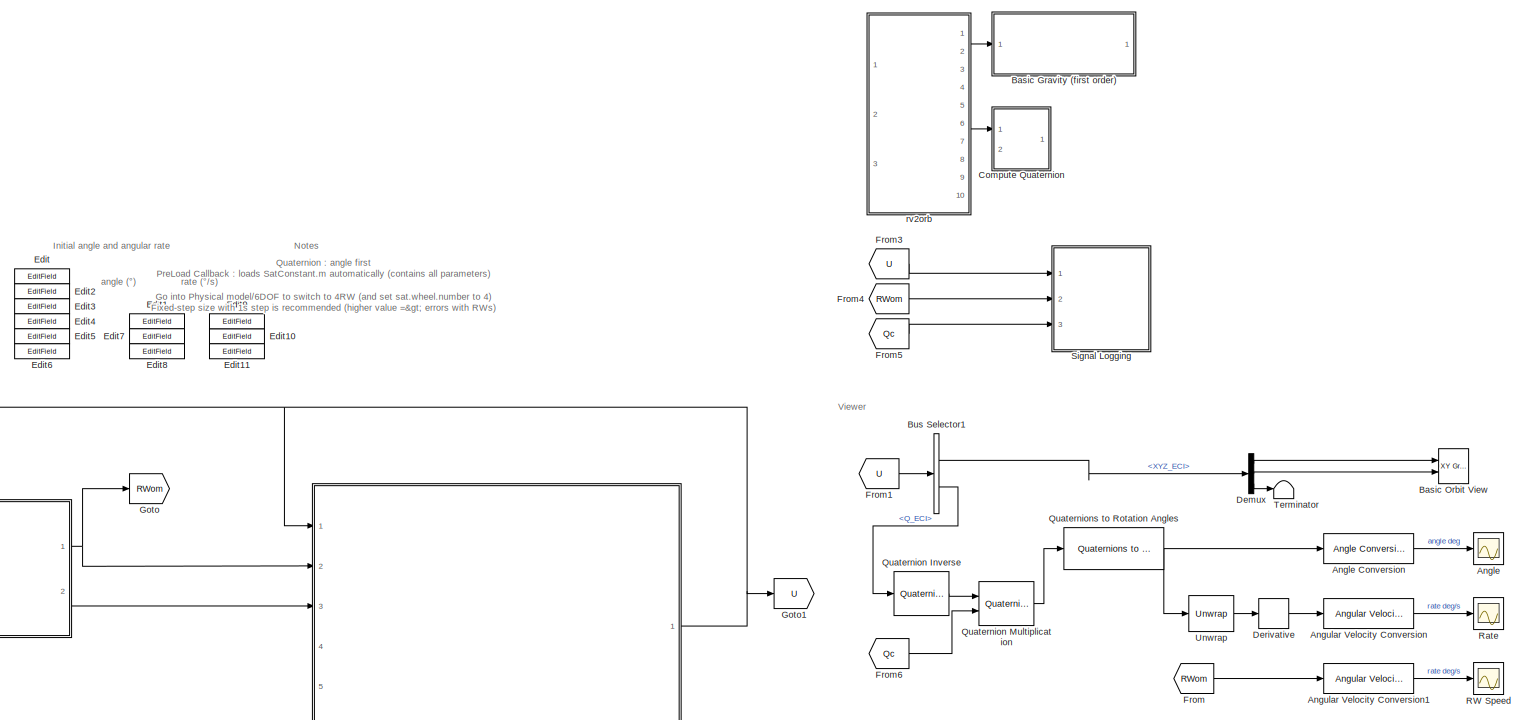
[diagram: root canvas - part 1/3, middle right region]
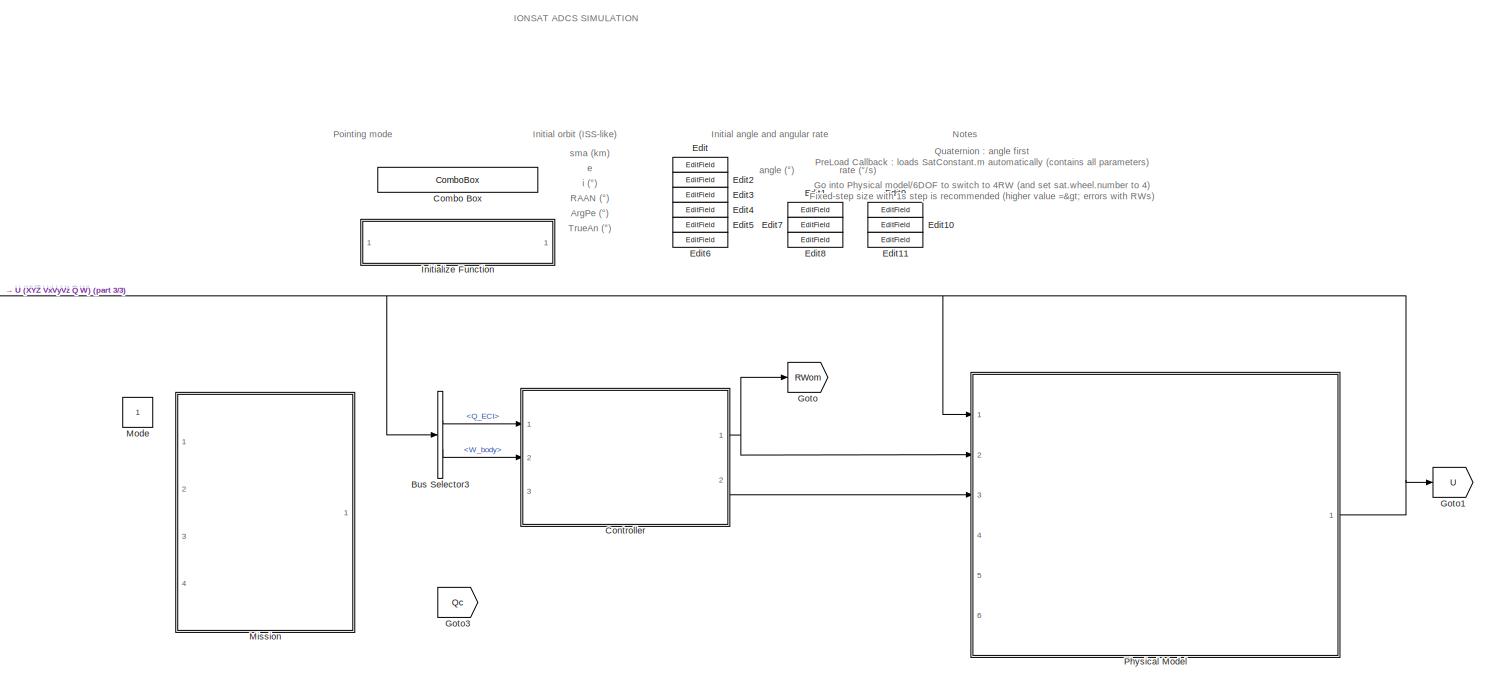
[diagram: root canvas - part 2/3, central region]
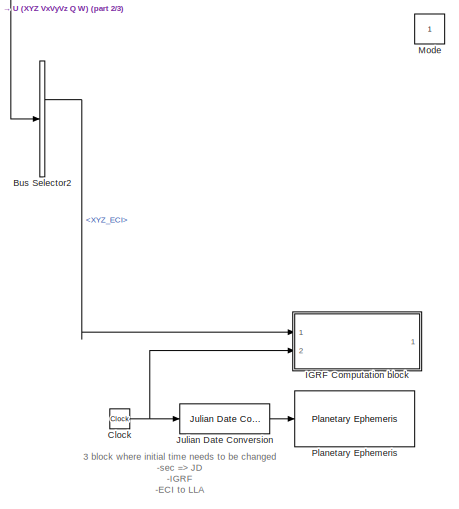
[diagram: root canvas - part 3/3, bottom left region]
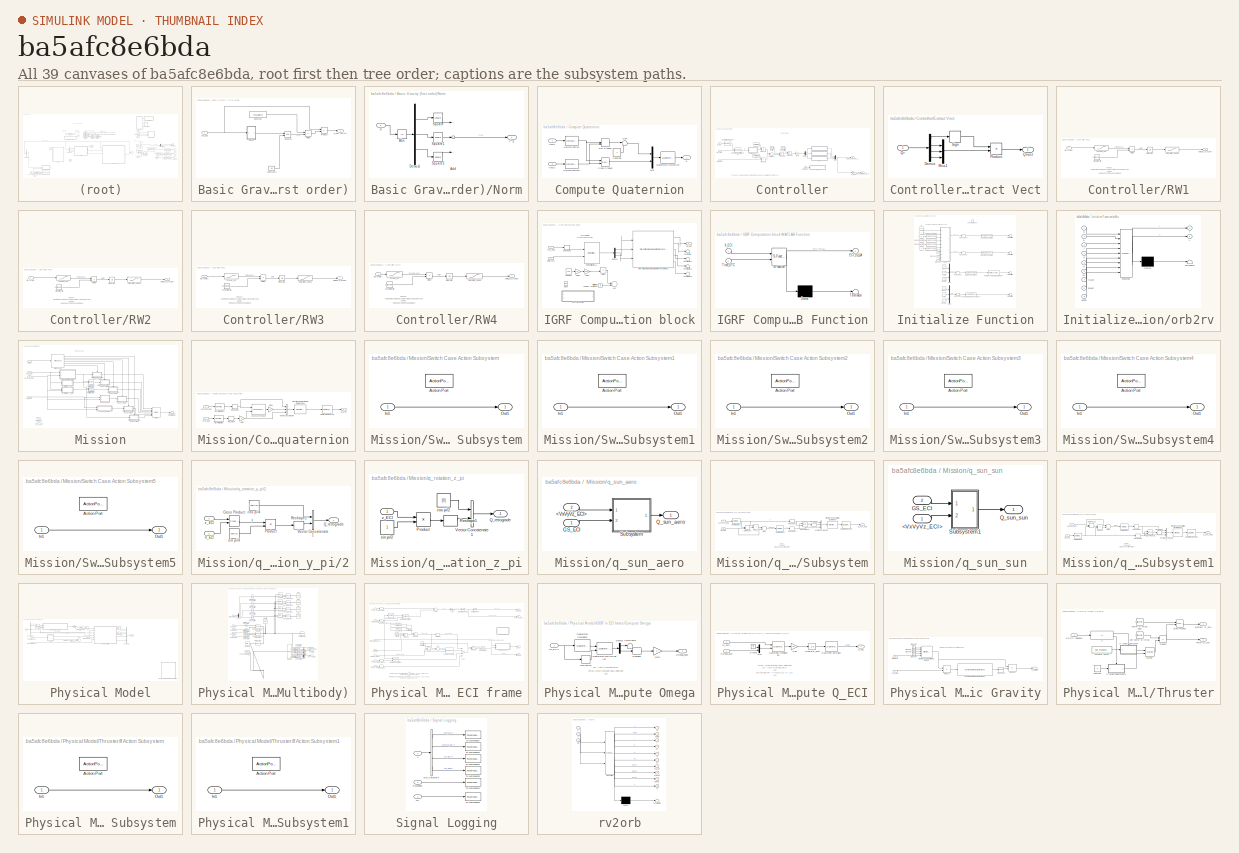
[diagram: thumbnail index - all 39 canvases of the model, root first then tree order]
MODEL slx_ba5afc8e6bda
KIND model
CONFIG AbsTol = auto
CONFIG EnableMultiTasking = off
CONFIG FixedStep = 1
CONFIG MaxStep = auto
CONFIG MinStep = auto
CONFIG PreLoadFcn = load('<path>')
CONFIG RelTol = 1e-3
CONFIG SampleTimeConstraint = Unconstrained
CONFIG Solver = ode8
CONFIG SolverName = ode8
CONFIG StartTime = 0.0
CONFIG StopTime = 8000
WORKSPACE source: MAT-file member
WORKSPACE MCOS: class17 (value not decoded)
BLOCK [Scope] Angle
  Floating = off
  NumInputPorts = 1
  Ports = [1]
  ScopeSpecificationString = Simulink.scopes.TimeScopeBlockCfg('CurrentConfiguration', extmgr.ConfigurationSet(extmgr.Configuration('Core','General UI',true),extmgr.Configuration('Core','Source UI',true),extmgr.Configuration('Sources','WiredSimulink',true,'DataLoggingVariableName','ScopeData1'),extmgr.Configuration('Visuals','Time Domain',true,'SerializedDisplays',{struct('MinYLimReal','-222.05936','MaxYLimReal','222.8327','Y...<+1823ch>
BLOCK [Reference] Angle Conversion  REF=aerolibconvert2/Angle Conversion
  Ports = [1, 1]
  SourceBlock = aerolibconvert2/Angle Conversion
  SourceProductBaseCode = AE
  SourceProductName = Aerospace Blockset
  SourceType = Angle Conversion
BLOCK [Reference] Angular Velocity Conversion  REF=aerolibconvert2/Angular Velocity
Conversion
  Ports = [1, 1]
  SourceBlock = aerolibconvert2/Angular Velocity\nConversion
  SourceProductBaseCode = AE
  SourceProductName = Aerospace Blockset
  SourceType = Angular Velocity Conversion
BLOCK [Reference] Angular Velocity Conversion1  REF=aerolibconvert2/Angular Velocity
Conversion
  Ports = [1, 1]
  SourceBlock = aerolibconvert2/Angular Velocity\nConversion
  SourceProductBaseCode = AE
  SourceProductName = Aerospace Blockset
  SourceType = Angular Velocity Conversion
BLOCK [SubSystem] Basic Gravity (first order)
  Commented = on
  Ports = [1, 1]
  RequestExecContextInheritance = off
BLOCK [Constant] Basic Gravity (first order)/Constant
  Value = -mu_Earth
BLOCK [Constant] Basic Gravity (first order)/Constant3
  Value = 3/2
BLOCK [Product] Basic Gravity (first order)/Divide
  InputSameDT = off
  Inputs = */
  OutDataTypeStr = Inherit: Inherit via internal rule
  Ports = [2, 1]
  RndMeth = Floor
  SaturateOnIntegerOverflow = off
BLOCK [SubSystem] Basic Gravity (first order)/Norm
  Ports = [1, 1]
  RequestExecContextInheritance = off
BLOCK [Abs] Basic Gravity (first order)/Norm/Abs
  SaturateOnIntegerOverflow = off
BLOCK [Sum] Basic Gravity (first order)/Norm/Add
  InputSameDT = off
  Inputs = +++
  OutDataTypeStr = Inherit: Inherit via internal rule
  Ports = [3, 1]
  SaturateOnIntegerOverflow = off
BLOCK [Demux] Basic Gravity (first order)/Norm/Demux1
  DisplayOption = bar
  Outputs = 3
  Ports = [1, 3]
BLOCK [Math] Basic Gravity (first order)/Norm/Square
  Operator = square
  Ports = [1, 1]
BLOCK [Math] Basic Gravity (first order)/Norm/Square1
  Operator = square
  Ports = [1, 1]
BLOCK [Math] Basic Gravity (first order)/Norm/Square2
  Operator = square
  Ports = [1, 1]
BLOCK [Outport] Basic Gravity (first order)/Norm/r**2
  IconDisplay = Port number
BLOCK [Inport] Basic Gravity (first order)/Norm/u
  IconDisplay = Port number
BLOCK [Product] Basic Gravity (first order)/Product
  InputSameDT = off
  OutDataTypeStr = Inherit: Inherit via internal rule
  Ports = [2, 1]
  RndMeth = Floor
  SaturateOnIntegerOverflow = off
BLOCK [Math] Basic Gravity (first order)/Square3
  Operator = pow
  Ports = [2, 1]
BLOCK [Inport] Basic Gravity (first order)/XYZ_ECI
  IconDisplay = Port number
BLOCK [Outport] Basic Gravity (first order)/g_ECI (m//s²)
  IconDisplay = Port number
  VectorParamsAs1DForOutWhenUnconnected = on
BLOCK [Reference] Basic Orbit View  REF=simulink/Sinks/XY Graph
  Ports = [2]
  SourceBlock = simulink/Sinks/XY Graph
  SourceProductBaseCode = SL
  SourceProductName = Simulink
  SourceType = XY scope.
BLOCK [BusSelector] Bus Selector1
  OutputAsBus = off
  OutputSignals = XYZ_ECI,Q_ECI
  Ports = [1, 2]
BLOCK [BusSelector] Bus Selector2
  OutputAsBus = off
  OutputSignals = XYZ_ECI,VxVyVz_ECI
  Ports = [1, 2]
BLOCK [BusSelector] Bus Selector3
  OutputAsBus = off
  OutputSignals = Q_ECI,W_body
  Ports = [1, 2]
BLOCK [Clock] Clock
BLOCK [ComboBox] Combo Box
  LabelPosition = Hide
  SelectedLabel = Nadir
BLOCK [SubSystem] Compute Quaternion
  Commented = on
  Ports = [2, 1]
  RequestExecContextInheritance = off
BLOCK [Constant] Compute Quaternion/Constant
BLOCK [Reference] Compute Quaternion/Cross Product  REF=vrlib/Utilities/Cross Product
  Ports = [2, 1]
  SourceBlock = vrlib/Utilities/Cross Product
  SourceProductBaseCode = SL
  SourceProductName = Simulink
  SourceType = Cross Product
BLOCK [DotProduct] Compute Quaternion/Dot Product
  OutDataTypeStr = Inherit: Inherit via internal rule
BLOCK [Mux] Compute Quaternion/Mux
  DisplayOption = bar
  Inputs = 2
  Ports = [2, 1]
BLOCK [Reference] Compute Quaternion/Normalization  REF=dspmathops/Normalization
  Ports = [1, 1]
  SourceBlock = dspmathops/Normalization
  SourceProductBaseCode = DS
  SourceProductName = DSP System Toolbox
  SourceType = Normalization
BLOCK [Reference] Compute Quaternion/Normalization1  REF=dspmathops/Normalization
  Ports = [1, 1]
  SourceBlock = dspmathops/Normalization
  SourceProductBaseCode = DS
  SourceProductName = DSP System Toolbox
  SourceType = Normalization
BLOCK [Reference] Compute Quaternion/Quaternion Normalize  REF=sharedutil/Quaternion
Normalize
  Ports = [1, 1]
  SourceBlock = sharedutil/Quaternion\nNormalize
  SourceProductBaseCode = AE
  SourceProductName = Aerospace Blockset
  SourceType = Quaternion Normalize
BLOCK [Sum] Compute Quaternion/Sum
  IconShape = round
  InputSameDT = off
  Inputs = |++
  OutDataTypeStr = Inherit: Inherit via internal rule
  Ports = [2, 1]
  SaturateOnIntegerOverflow = off
BLOCK [Inport] Compute Quaternion/Vect1
  IconDisplay = Port number
BLOCK [Inport] Compute Quaternion/Vect2
  IconDisplay = Port number
  Port = 2
BLOCK [Outport] Compute Quaternion/q
  IconDisplay = Port number
  PortDimensions = 4
BLOCK [SubSystem] Controller
  Ports = [3, 2]
  RequestExecContextInheritance = off
  SystemSampleTime = 1
  TreatAsAtomicUnit = on
BLOCK [Demux] Controller/Demux
  DisplayOption = bar
  Outputs = 3
  Ports = [1, 3]
BLOCK [SubSystem] Controller/Extract Vect
  Ports = [1, 1]
  RequestExecContextInheritance = off
BLOCK [Demux] Controller/Extract Vect/Demux
  DisplayOption = bar
  Ports = [1, 4]
BLOCK [Mux] Controller/Extract Vect/Mux1
  DisplayOption = bar
  Inputs = 3
  Ports = [3, 1]
BLOCK [Product] Controller/Extract Vect/Product
  InputSameDT = off
  OutDataTypeStr = Inherit: Inherit via internal rule
  Ports = [2, 1]
  RndMeth = Floor
  SaturateOnIntegerOverflow = off
BLOCK [Inport] Controller/Extract Vect/Qr
  IconDisplay = Port number
BLOCK [Outport] Controller/Extract Vect/Qvect
  IconDisplay = Port number
BLOCK [Signum] Controller/Extract Vect/Sign
BLOCK [Gain] Controller/Gain
  Gain = -1
  OutDataTypeStr = Inherit: Inherit via internal rule
  ParamDataTypeStr = Inherit: Inherit via internal rule
  SaturateOnIntegerOverflow = off
BLOCK [Ground] Controller/Ground2
  Commented = on
BLOCK [Constant] Controller/Inertia
  Value = sat.inertia
BLOCK [Constant] Controller/Kd
  Value = sat.PID.kd
BLOCK [Constant] Controller/Kp
  Value = sat.PID.kp
BLOCK [Outport] Controller/Magnetotorquers_C
  IconDisplay = Port number
  Port = 2
BLOCK [Mux] Controller/Mux
  DisplayOption = bar
  Inputs = 3
  Ports = [3, 1]
BLOCK [Outport] Controller/OmegaWheels_C
  IconDisplay = Port number
BLOCK [Product] Controller/Product1
  InputSameDT = off
  OutDataTypeStr = Inherit: Inherit via internal rule
  Ports = [2, 1]
  RndMeth = Floor
  SaturateOnIntegerOverflow = off
BLOCK [Product] Controller/Product2
  InputSameDT = off
  OutDataTypeStr = Inherit: Inherit via internal rule
  Ports = [2, 1]
  RndMeth = Floor
  SaturateOnIntegerOverflow = off
BLOCK [Product] Controller/Product3
  InputSameDT = off
  Multiplication = Matrix(*)
  OutDataTypeStr = Inherit: Inherit via internal rule
  Ports = [2, 1]
  RndMeth = Floor
  SaturateOnIntegerOverflow = off
BLOCK [Product] Controller/Product4
  InputSameDT = off
  Multiplication = Matrix(*)
  OutDataTypeStr = Inherit: Inherit via internal rule
  Ports = [2, 1]
  RndMeth = Floor
  SaturateOnIntegerOverflow = off
BLOCK [Inport] Controller/Q_ECI
  IconDisplay = Port number
BLOCK [Inport] Controller/Qc_ECI
  IconDisplay = Port number
  Port = 3
BLOCK [Reference] Controller/Quaternion Inverse  REF=aerolibutil/Quaternion
Inverse
  Ports = [1, 1]
  SourceBlock = aerolibutil/Quaternion\nInverse
  SourceProductBaseCode = AE
  SourceProductName = Aerospace Blockset
  SourceType = Quaternion Inverse
BLOCK [Reference] Controller/Quaternion Multiplication  REF=aerolibutil/Quaternion
Multiplication
  Ports = [2, 1]
  SourceBlock = aerolibutil/Quaternion\nMultiplication
  SourceProductBaseCode = AE
  SourceProductName = Aerospace Blockset
  SourceType = Quaternion Multiplication
BLOCK [SubSystem] Controller/RW1
  Ports = [1, 1]
  RequestExecContextInheritance = off
BLOCK [Product] Controller/RW1/Divide
  InputSameDT = off
  Inputs = */
  OutDataTypeStr = Inherit: Inherit via internal rule
  Ports = [2, 1]
  RndMeth = Floor
  SaturateOnIntegerOverflow = off
BLOCK [Integrator] Controller/RW1/Integrator
  Ports = [1, 1]
BLOCK [Inport] Controller/RW1/Mc (scalar)
  IconDisplay = Port number
BLOCK [Outport] Controller/RW1/Omega_C (scalar)
  IconDisplay = Port number
  VectorParamsAs1DForOutWhenUnconnected = on
BLOCK [Saturate] Controller/RW1/Saturation_speed
  InputPortMap = u0
  LowerLimit = - sat.wheel.max_speed
  Ports = [1, 1]
  UpperLimit = sat.wheel.max_speed
BLOCK [Saturate] Controller/RW1/Torque_sat
  InputPortMap = u0
  LowerLimit = - sat.wheel.max_torque
  Ports = [1, 1]
  UpperLimit = sat.wheel.max_torque
BLOCK [Constant] Controller/RW1/Wheel Inertia
  Value = sat.wheel.max_sigma/sat.wheel.max_speed
BLOCK [SubSystem] Controller/RW2
  Ports = [1, 1]
  RequestExecContextInheritance = off
BLOCK [Product] Controller/RW2/Divide
  InputSameDT = off
  Inputs = */
  OutDataTypeStr = Inherit: Inherit via internal rule
  Ports = [2, 1]
  RndMeth = Floor
  SaturateOnIntegerOverflow = off
BLOCK [Integrator] Controller/RW2/Integrator
  Ports = [1, 1]
BLOCK [Inport] Controller/RW2/Mc (scalar)
  IconDisplay = Port number
BLOCK [Outport] Controller/RW2/Omega_C (scalar)
  IconDisplay = Port number
  VectorParamsAs1DForOutWhenUnconnected = on
BLOCK [Saturate] Controller/RW2/Saturation_speed
  InputPortMap = u0
  LowerLimit = - sat.wheel.max_speed
  Ports = [1, 1]
  UpperLimit = sat.wheel.max_speed
BLOCK [Saturate] Controller/RW2/Torque_sat
  InputPortMap = u0
  LowerLimit = - sat.wheel.max_torque
  Ports = [1, 1]
  UpperLimit = sat.wheel.max_torque
BLOCK [Constant] Controller/RW2/Wheel Inertia
  Value = sat.wheel.max_sigma/sat.wheel.max_speed
BLOCK [SubSystem] Controller/RW3
  Ports = [1, 1]
  RequestExecContextInheritance = off
BLOCK [Product] Controller/RW3/Divide
  InputSameDT = off
  Inputs = */
  OutDataTypeStr = Inherit: Inherit via internal rule
  Ports = [2, 1]
  RndMeth = Floor
  SaturateOnIntegerOverflow = off
BLOCK [Integrator] Controller/RW3/Integrator
  Ports = [1, 1]
BLOCK [Inport] Controller/RW3/Mc (scalar)
  IconDisplay = Port number
BLOCK [Outport] Controller/RW3/Omega_C (scalar)
  IconDisplay = Port number
  VectorParamsAs1DForOutWhenUnconnected = on
BLOCK [Saturate] Controller/RW3/Saturation_speed
  InputPortMap = u0
  LowerLimit = - sat.wheel.max_speed
  Ports = [1, 1]
  UpperLimit = sat.wheel.max_speed
BLOCK [Saturate] Controller/RW3/Torque_sat
  InputPortMap = u0
  LowerLimit = - sat.wheel.max_torque
  Ports = [1, 1]
  UpperLimit = sat.wheel.max_torque
BLOCK [Constant] Controller/RW3/Wheel Inertia
  Value = sat.wheel.max_sigma/sat.wheel.max_speed
BLOCK [SubSystem] Controller/RW4
  Commented = on
  Ports = [1, 1]
  RequestExecContextInheritance = off
BLOCK [Product] Controller/RW4/Divide
  InputSameDT = off
  Inputs = */
  OutDataTypeStr = Inherit: Inherit via internal rule
  Ports = [2, 1]
  RndMeth = Floor
  SaturateOnIntegerOverflow = off
BLOCK [Integrator] Controller/RW4/Integrator
  Ports = [1, 1]
BLOCK [Inport] Controller/RW4/Mc (scalar)
  IconDisplay = Port number
BLOCK [Outport] Controller/RW4/Omega_C (scalar)
  IconDisplay = Port number
  VectorParamsAs1DForOutWhenUnconnected = on
BLOCK [Saturate] Controller/RW4/Saturation_speed
  InputPortMap = u0
  LowerLimit = - sat.wheel.max_speed
  Ports = [1, 1]
  UpperLimit = sat.wheel.max_speed
BLOCK [Saturate] Controller/RW4/Torque_sat
  InputPortMap = u0
  LowerLimit = - sat.wheel.max_torque
  Ports = [1, 1]
  UpperLimit = sat.wheel.max_torque
BLOCK [Constant] Controller/RW4/Wheel Inertia
  Value = sat.wheel.max_sigma/sat.wheel.max_speed
BLOCK [Constant] Controller/Repartition
  Value = sat.wheel.repartition_matrix_3RW
BLOCK [Sum] Controller/Subtract
  InputSameDT = off
  Inputs = +-
  OutDataTypeStr = Inherit: Inherit via internal rule
  Ports = [2, 1]
  SaturateOnIntegerOverflow = off
BLOCK [Inport] Controller/W_body
  IconDisplay = Port number
  Port = 2
BLOCK [Gain] Controller/k_mag
  Gain = -sat.PID.kmag
  OutDataTypeStr = Inherit: Inherit via internal rule
  ParamDataTypeStr = Inherit: Inherit via internal rule
  SaturateOnIntegerOverflow = off
BLOCK [Demux] Demux
  DisplayOption = bar
  Outputs = 3
  Ports = [1, 3]
BLOCK [Derivative] Derivative
BLOCK [EditField] Edit
  Alignment = Center
  LabelPosition = Hide
  ShowInitialText = on
BLOCK [EditField] Edit1
  Alignment = Center
  LabelPosition = Hide
  ShowInitialText = on
BLOCK [EditField] Edit10
  Alignment = Center
  LabelPosition = Hide
  ShowInitialText = on
BLOCK [EditField] Edit11
  Alignment = Center
  LabelPosition = Hide
  ShowInitialText = on
BLOCK [EditField] Edit2
  Alignment = Center
  LabelPosition = Hide
  ShowInitialText = on
BLOCK [EditField] Edit3
  Alignment = Center
  LabelPosition = Hide
  ShowInitialText = on
BLOCK [EditField] Edit4
  Alignment = Center
  LabelPosition = Hide
  ShowInitialText = on
BLOCK [EditField] Edit5
  Alignment = Center
  LabelPosition = Hide
  ShowInitialText = on
BLOCK [EditField] Edit6
  Alignment = Center
  LabelPosition = Hide
  ShowInitialText = on
BLOCK [EditField] Edit7
  Alignment = Center
  LabelPosition = Hide
  ShowInitialText = on
BLOCK [EditField] Edit8
  Alignment = Center
  LabelPosition = Hide
  ShowInitialText = on
BLOCK [EditField] Edit9
  Alignment = Center
  LabelPosition = Hide
  ShowInitialText = on
BLOCK [From] From
  GotoTag = RWom
BLOCK [From] From1
  GotoTag = U
BLOCK [From] From3
  GotoTag = U
BLOCK [From] From4
  GotoTag = RWom
BLOCK [From] From5
  GotoTag = Qc
BLOCK [From] From6
  GotoTag = Qc
BLOCK [Goto] Goto
  GotoTag = RWom
BLOCK [Goto] Goto1
  GotoTag = U
BLOCK [Goto] Goto3
  GotoTag = Qc
BLOCK [SubSystem] IGRF Computation block
  Ports = [2, 1]
  RequestExecContextInheritance = off
BLOCK [Outport] IGRF Computation block/<B_ECI>
  IconDisplay = Port number
BLOCK [Inport] IGRF Computation block/<XYZ_ECI>
  IconDisplay = Port number
BLOCK [Sum] IGRF Computation block/Add
  Commented = on
  InputSameDT = off
  OutDataTypeStr = Inherit: Inherit via internal rule
  Ports = [2, 1]
  SaturateOnIntegerOverflow = off
BLOCK [Clock] IGRF Computation block/Clock
BLOCK [Constant] IGRF Computation block/Constant
  Commented = on
  Value = 365
BLOCK [Demux] IGRF Computation block/Demux1
  DisplayOption = bar
  Outputs = 3
  Ports = [1, 3]
BLOCK [Product] IGRF Computation block/Divide
  Commented = on
  InputSameDT = off
  Inputs = */
  OutDataTypeStr = Inherit: Inherit via internal rule
  Ports = [2, 1]
  RndMeth = Floor
  SaturateOnIntegerOverflow = off
BLOCK [Reference] IGRF Computation block/ECI Position to LLA  REF=aerolibtransform2/ECI Position to LLA
  AttributesFormatString = %<red>
  Ports = [2, 1]
  SourceBlock = aerolibtransform2/ECI Position to LLA
  SourceProductBaseCode = AE
  SourceProductName = Aerospace Blockset
  SourceType = ECItoLLA
BLOCK [Gain] IGRF Computation block/Gain1
  Commented = on
  Gain = 3600
  OutDataTypeStr = Inherit: Inherit via internal rule
  ParamDataTypeStr = Inherit: Inherit via internal rule
  SaturateOnIntegerOverflow = off
BLOCK [Gain] IGRF Computation block/Gain2
  Commented = on
  Gain = 24
  OutDataTypeStr = Inherit: Inherit via internal rule
  ParamDataTypeStr = Inherit: Inherit via internal rule
  SaturateOnIntegerOverflow = off
BLOCK [Ground] IGRF Computation block/Initial time in decimal year Block ?
  Commented = on
BLOCK [Reference] IGRF Computation block/International Geomagnetic Reference Field 12  REF=aerolibgravity2/International Geomagnetic Reference Field 12
  Ports = [3, 5]
  SourceBlock = aerolibgravity2/International Geomagnetic Reference Field 12
  SourceProductBaseCode = AE
  SourceProductName = Aerospace Blockset
  SourceType = InternationalGeomagneticReferenceField12
BLOCK [SubSystem] IGRF Computation block/MATLAB Function
  Commented = on
  ErrorFcn = Stateflow.Translate.translate
  PermitHierarchicalResolution = ExplicitOnly
  Ports = [2, 1]
  RequestExecContextInheritance = off
  SFBlockType = MATLAB Function
  TreatAsAtomicUnit = on
BLOCK [Demux] IGRF Computation block/MATLAB Function/ Demux 
  Outputs = 1
  Ports = [1, 1]
BLOCK [S-Function] IGRF Computation block/MATLAB Function/ SFunction 
  EnableBusSupport = off
  FunctionName = sf_sfun
  PortCounts = [2 2]
  Ports = [2, 2]
  SFcnIsStateOwnerBlock = off
  SFunctionDeploymentMode = off
  Tag = Stateflow S-Function mission 3
BLOCK [Terminator] IGRF Computation block/MATLAB Function/ Terminator 
BLOCK [Outport] IGRF Computation block/MATLAB Function/ECI_to_LLA
  IconDisplay = Port number
BLOCK [Inport] IGRF Computation block/MATLAB Function/Time_UTC
  IconDisplay = Port number
  Port = 2
BLOCK [Inport] IGRF Computation block/MATLAB Function/X_ECI
  IconDisplay = Port number
BLOCK [Reshape] IGRF Computation block/Reshape1
  OutputDimensionality = Column vector (2-D)
  Ports = [1, 1]
BLOCK [Terminator] IGRF Computation block/Terminator
BLOCK [Terminator] IGRF Computation block/Terminator1
BLOCK [Terminator] IGRF Computation block/Terminator2
BLOCK [Terminator] IGRF Computation block/Terminator3
BLOCK [Inport] IGRF Computation block/Time (sec)
  IconDisplay = Port number
  Port = 2
BLOCK [SubSystem] Initialize Function
  Ports = []
  RequestExecContextInheritance = off
  TreatAsAtomicUnit = on
BLOCK [Reference] Initialize Function/Angle Conversion1  REF=aerolibconvert2/Angle Conversion
  Ports = [1, 1]
  SourceBlock = aerolibconvert2/Angle Conversion
  SourceProductBaseCode = AE
  SourceProductName = Aerospace Blockset
  SourceType = Angle Conversion
BLOCK [Reference] Initialize Function/Angle Conversion2  REF=aerolibconvert2/Angle Conversion
  Ports = [1, 1]
  SourceBlock = aerolibconvert2/Angle Conversion
  SourceProductBaseCode = AE
  SourceProductName = Aerospace Blockset
  SourceType = Angle Conversion
BLOCK [Reference] Initialize Function/Angle Conversion3  REF=aerolibconvert2/Angle Conversion
  Ports = [1, 1]
  SourceBlock = aerolibconvert2/Angle Conversion
  SourceProductBaseCode = AE
  SourceProductName = Aerospace Blockset
  SourceType = Angle Conversion
BLOCK [Reference] Initialize Function/Angle Conversion4  REF=aerolibconvert2/Angle Conversion
  Ports = [1, 1]
  SourceBlock = aerolibconvert2/Angle Conversion
  SourceProductBaseCode = AE
  SourceProductName = Aerospace Blockset
  SourceType = Angle Conversion
BLOCK [Reference] Initialize Function/Angle Conversion5  REF=aerolibconvert2/Angle Conversion
  Ports = [1, 1]
  SourceBlock = aerolibconvert2/Angle Conversion
  SourceProductBaseCode = AE
  SourceProductName = Aerospace Blockset
  SourceType = Angle Conversion
BLOCK [Reference] Initialize Function/Angular Velocity Conversion2  REF=aerolibconvert2/Angular Velocity
Conversion
  Ports = [1, 1]
  SourceBlock = aerolibconvert2/Angular Velocity\nConversion
  SourceProductBaseCode = AE
  SourceProductName = Aerospace Blockset
  SourceType = Angular Velocity Conversion
BLOCK [EventListener] Initialize Function/Event Listener
  DisableCoverage = on
  EventName = reset
BLOCK [Ground] Initialize Function/Ground
BLOCK [Ground] Initialize Function/Ground1
BLOCK [Ground] Initialize Function/Ground2
BLOCK [Reference] Initialize Function/Length Conversion  REF=aerolibconvert2/Length Conversion
  Ports = [1, 1]
  SourceBlock = aerolibconvert2/Length Conversion
  SourceProductBaseCode = AE
  SourceProductName = Aerospace Blockset
  SourceType = Length Conversion
BLOCK [Mux] Initialize Function/Mux
  DisplayOption = bar
  Inputs = 3
  Ports = [3, 1]
BLOCK [Mux] Initialize Function/Mux1
  DisplayOption = bar
  Inputs = 3
  Ports = [3, 1]
BLOCK [Constant] Initialize Function/O
  Value = 146
BLOCK [Reshape] Initialize Function/Reshape
  OutputDimensionality = Column vector (2-D)
  Ports = [1, 1]
BLOCK [Reshape] Initialize Function/Reshape1
  OutputDimensionality = Column vector (2-D)
  Ports = [1, 1]
BLOCK [Reshape] Initialize Function/Reshape2
  OutputDimensionality = Column vector (2-D)
  Ports = [1, 1]
BLOCK [Reshape] Initialize Function/Reshape3
  OutputDimensionality = Column vector (2-D)
  Ports = [1, 1]
BLOCK [Reference] Initialize Function/Rotation Angles to Quaternions  REF=sharedtransform/Rotation Angles to Quaternions
  AttributesFormatString = Rotation Order: %<rotationOrder>
  Ports = [1, 1]
  SourceBlock = sharedtransform/Rotation Angles to Quaternions
  SourceProductBaseCode = AE
  SourceProductName = Aerospace Blockset
  SourceType = Ang2Quat
BLOCK [StateWriter] Initialize Function/State Writer1
  StateOwnerBlock = ../../Physical Model/6DOF in ECI frame/Integrator_speed
BLOCK [StateWriter] Initialize Function/State Writer2
  StateOwnerBlock = ../../Physical Model/6DOF in ECI frame/Integrator_pos
BLOCK [StateWriter] Initialize Function/State Writer3
  StateOwnerBlock = ../../Physical Model/6DOF in ECI frame/Compute Q_ECI/Integrator_quat
BLOCK [StateWriter] Initialize Function/State Writer4
  StateOwnerBlock = ../../Physical Model/6DOF in ECI frame/Integrator_rate
BLOCK [Reference] Initialize Function/Velocity Conversion  REF=aerolibconvert2/Velocity Conversion
  Ports = [1, 1]
  SourceBlock = aerolibconvert2/Velocity Conversion
  SourceProductBaseCode = AE
  SourceProductName = Aerospace Blockset
  SourceType = Velocity Conversion
BLOCK [Constant] Initialize Function/a
  Value = 7000
BLOCK [Constant] Initialize Function/alpha
  Value = 45
BLOCK [Constant] Initialize Function/alpha'
  Value = 0
BLOCK [Constant] Initialize Function/beta
  Value = 30
BLOCK [Constant] Initialize Function/beta'
  Value = 0
BLOCK [Constant] Initialize Function/e
  Value = 0
BLOCK [Constant] Initialize Function/gamma
  Value = 30
BLOCK [Constant] Initialize Function/gamma'
  Value = 0
BLOCK [Constant] Initialize Function/i
  Value = 51
BLOCK [Constant] Initialize Function/nu
  Value = 0
BLOCK [Constant] Initialize Function/o
  Value = 344
BLOCK [SubSystem] Initialize Function/orb2rv
  ErrorFcn = Stateflow.Translate.translate
  PermitHierarchicalResolution = ExplicitOnly
  Ports = [9, 2]
  RequestExecContextInheritance = off
  SFBlockType = MATLAB Function
  TreatAsAtomicUnit = on
BLOCK [Demux] Initialize Function/orb2rv/ Demux 
  Outputs = 1
  Ports = [1, 1]
BLOCK [S-Function] Initialize Function/orb2rv/ SFunction 
  EnableBusSupport = on
  FunctionName = sf_sfun
  PortCounts = [9 3]
  Ports = [9, 3]
  SFcnIsStateOwnerBlock = off
  SFunctionDeploymentMode = off
  Tag = Stateflow S-Function mission 2
BLOCK [Terminator] Initialize Function/orb2rv/ Terminator 
BLOCK [Inport] Initialize Function/orb2rv/O
  IconDisplay = Port number
  Port = 4
BLOCK [Inport] Initialize Function/orb2rv/a
  IconDisplay = Port number
BLOCK [Inport] Initialize Function/orb2rv/argLat
  IconDisplay = Port number
  Port = 8
BLOCK [Inport] Initialize Function/orb2rv/e
  IconDisplay = Port number
  Port = 2
BLOCK [Inport] Initialize Function/orb2rv/i
  IconDisplay = Port number
  Port = 3
BLOCK [Inport] Initialize Function/orb2rv/lonPer
  IconDisplay = Port number
  Port = 9
BLOCK [Inport] Initialize Function/orb2rv/nu
  IconDisplay = Port number
  Port = 6
BLOCK [Inport] Initialize Function/orb2rv/o
  IconDisplay = Port number
  Port = 5
BLOCK [Outport] Initialize Function/orb2rv/r
  IconDisplay = Port number
BLOCK [Inport] Initialize Function/orb2rv/truLon
  IconDisplay = Port number
  Port = 7
BLOCK [Outport] Initialize Function/orb2rv/v
  IconDisplay = Port number
  Port = 2
BLOCK [Reference] Julian Date Conversion  REF=aerolibconvert2/Julian Date Conversion
  Ports = [1, 1]
  SourceBlock = aerolibconvert2/Julian Date Conversion
  SourceProductBaseCode = AE
  SourceProductName = Aerospace Blockset
  SourceType = JulianDate
BLOCK [SubSystem] Mission
  Ports = [4, 1]
  RequestExecContextInheritance = off
  SystemSampleTime = 1
  TreatAsAtomicUnit = on
  TreatAsGroupedWhenPropagatingVariantConditions = off
BLOCK [SubSystem] Mission/Compute orbit quaternion
  Ports = [2, 1]
  RequestExecContextInheritance = off
BLOCK [Reference] Mission/Compute orbit quaternion/3x3 Cross Product  REF=sharedutil/3x3 Cross Product
  Ports = [2, 1]
  SourceBlock = sharedutil/3x3 Cross Product
  SourceProductBaseCode = AE
  SourceProductName = Aerospace Blockset
  SourceType = CrossProduct
BLOCK [Inport] Mission/Compute orbit quaternion/<VxVyVz_ECI>
  IconDisplay = Port number
  Port = 2
BLOCK [Inport] Mission/Compute orbit quaternion/<XYZ_ECI>
  IconDisplay = Port number
BLOCK [Reference] Mission/Compute orbit quaternion/Direction Cosine Matrix to Quaternions  REF=sharedtransform/Direction Cosine Matrix 
to Quaternions
  Ports = [1, 1]
  SourceBlock = sharedtransform/Direction Cosine Matrix \nto Quaternions
  SourceProductBaseCode = AE
  SourceProductName = Aerospace Blockset
  SourceType = DCM2Quaternion
BLOCK [Gain] Mission/Compute orbit quaternion/Gain
  OutDataTypeStr = Inherit: Inherit via internal rule
  ParamDataTypeStr = Inherit: Inherit via internal rule
  SaturateOnIntegerOverflow = off
BLOCK [Gain] Mission/Compute orbit quaternion/Gain1
  Gain = -1
  OutDataTypeStr = Inherit: Inherit via internal rule
  ParamDataTypeStr = Inherit: Inherit via internal rule
  SaturateOnIntegerOverflow = off
BLOCK [Reference] Mission/Compute orbit quaternion/Normalization  REF=dspmathops/Normalization
  Ports = [1, 1]
  SourceBlock = dspmathops/Normalization
  SourceProductBaseCode = DS
  SourceProductName = DSP System Toolbox
  SourceType = Normalization
BLOCK [Reference] Mission/Compute orbit quaternion/Normalization1  REF=dspmathops/Normalization
  Ports = [1, 1]
  SourceBlock = dspmathops/Normalization
  SourceProductBaseCode = DS
  SourceProductName = DSP System Toolbox
  SourceType = Normalization
BLOCK [Outport] Mission/Compute orbit quaternion/Q_orbit
  IconDisplay = Port number
BLOCK [Reference] Mission/Compute orbit quaternion/Quaternion Inverse  REF=aerolibutil/Quaternion
Inverse
  Ports = [1, 1]
  SourceBlock = aerolibutil/Quaternion\nInverse
  SourceProductBaseCode = AE
  SourceProductName = Aerospace Blockset
  SourceType = Quaternion Inverse
BLOCK [Reshape] Mission/Compute orbit quaternion/Reshape
  OutputDimensionality = Column vector (2-D)
  Ports = [1, 1]
BLOCK [Reshape] Mission/Compute orbit quaternion/Reshape1
  OutputDimensionality = Column vector (2-D)
  Ports = [1, 1]
BLOCK [Concatenate] Mission/Compute orbit quaternion/Vector Concatenate
  ConcatenateDimension = 2
  Mode = Multidimensional array
  NumInputs = 3
  Ports = [3, 1]
BLOCK [Inport] Mission/GS_ECI
  IconDisplay = Port number
  Port = 4
BLOCK [Inport] Mission/MODE
  IconDisplay = Port number
  OutDataTypeStr = int8
  OutMax = 100
  OutMin = 1
BLOCK [Merge] Mission/Merge
  Inputs = 6
  Ports = [6, 1]
BLOCK [Outport] Mission/Quaternion Command
  IconDisplay = Port number
BLOCK [Reference] Mission/Quaternion Multiplication  REF=aerolibutil/Quaternion
Multiplication
  Ports = [2, 1]
  SourceBlock = aerolibutil/Quaternion\nMultiplication
  SourceProductBaseCode = AE
  SourceProductName = Aerospace Blockset
  SourceType = Quaternion Multiplication
BLOCK [Reference] Mission/Quaternion Multiplication1  REF=aerolibutil/Quaternion
Multiplication
  Ports = [2, 1]
  SourceBlock = aerolibutil/Quaternion\nMultiplication
  SourceProductBaseCode = AE
  SourceProductName = Aerospace Blockset
  SourceType = Quaternion Multiplication
BLOCK [SwitchCase] Mission/Switch Case
  CaseConditions = {1, 2, 3, 4, 5}
  Ports = [1, 6]
BLOCK [SubSystem] Mission/Switch Case Action Subsystem
  Ports = [1, 1, 0, 0, 0, 0, 0, 1]
  RequestExecContextInheritance = off
  TreatAsAtomicUnit = on
BLOCK [ActionPort] Mission/Switch Case Action Subsystem/Action Port
  ActionPortLabel = case [ 1 ]:
BLOCK [Inport] Mission/Switch Case Action Subsystem/In1
  IconDisplay = Port number
BLOCK [Outport] Mission/Switch Case Action Subsystem/Out1
  IconDisplay = Port number
BLOCK [SubSystem] Mission/Switch Case Action Subsystem1
  Ports = [1, 1, 0, 0, 0, 0, 0, 1]
  RequestExecContextInheritance = off
  TreatAsAtomicUnit = on
BLOCK [ActionPort] Mission/Switch Case Action Subsystem1/Action Port
  ActionPortLabel = case [ 5 ]:
BLOCK [Inport] Mission/Switch Case Action Subsystem1/In1
  IconDisplay = Port number
BLOCK [Outport] Mission/Switch Case Action Subsystem1/Out1
  IconDisplay = Port number
BLOCK [SubSystem] Mission/Switch Case Action Subsystem2
  Ports = [1, 1, 0, 0, 0, 0, 0, 1]
  RequestExecContextInheritance = off
  TreatAsAtomicUnit = on
BLOCK [ActionPort] Mission/Switch Case Action Subsystem2/Action Port
  ActionPortLabel = case [ 4 ]:
BLOCK [Inport] Mission/Switch Case Action Subsystem2/In1
  IconDisplay = Port number
BLOCK [Outport] Mission/Switch Case Action Subsystem2/Out1
  IconDisplay = Port number
BLOCK [SubSystem] Mission/Switch Case Action Subsystem3
  Ports = [1, 1, 0, 0, 0, 0, 0, 1]
  RequestExecContextInheritance = off
  TreatAsAtomicUnit = on
BLOCK [ActionPort] Mission/Switch Case Action Subsystem3/Action Port
  ActionPortLabel = case [ 3 ]:
BLOCK [Inport] Mission/Switch Case Action Subsystem3/In1
  IconDisplay = Port number
BLOCK [Outport] Mission/Switch Case Action Subsystem3/Out1
  IconDisplay = Port number
BLOCK [SubSystem] Mission/Switch Case Action Subsystem4
  Ports = [1, 1, 0, 0, 0, 0, 0, 1]
  RequestExecContextInheritance = off
  TreatAsAtomicUnit = on
BLOCK [ActionPort] Mission/Switch Case Action Subsystem4/Action Port
  ActionPortLabel = case [ 2 ]:
BLOCK [Inport] Mission/Switch Case Action Subsystem4/In1
  IconDisplay = Port number
BLOCK [Outport] Mission/Switch Case Action Subsystem4/Out1
  IconDisplay = Port number
BLOCK [SubSystem] Mission/Switch Case Action Subsystem5
  Ports = [1, 1, 0, 0, 0, 0, 0, 1]
  RequestExecContextInheritance = off
  TreatAsAtomicUnit = on
BLOCK [ActionPort] Mission/Switch Case Action Subsystem5/Action Port
  ActionPortLabel = default:
BLOCK [Inport] Mission/Switch Case Action Subsystem5/In1
  IconDisplay = Port number
BLOCK [Outport] Mission/Switch Case Action Subsystem5/Out1
  IconDisplay = Port number
BLOCK [Inport] Mission/VxVyVz_ECI
  IconDisplay = Port number
  Port = 3
BLOCK [Inport] Mission/XYZ_ECI
  IconDisplay = Port number
  Port = 2
BLOCK [SubSystem] Mission/q_rotation_y_pi//2
  Ports = [2, 1]
  RequestExecContextInheritance = off
BLOCK [Reference] Mission/q_rotation_y_pi//2/Cross Product  REF=vrlib/Utilities/Cross Product
  Ports = [2, 1]
  SourceBlock = vrlib/Utilities/Cross Product
  SourceProductBaseCode = SL
  SourceProductName = Simulink
  SourceType = Cross Product
BLOCK [Product] Mission/q_rotation_y_pi//2/Product
  InputSameDT = off
  OutDataTypeStr = Inherit: Inherit via internal rule
  Ports = [2, 1]
  RndMeth = Floor
  SaturateOnIntegerOverflow = off
BLOCK [Outport] Mission/q_rotation_y_pi//2/Q_retrograde
  IconDisplay = Port number
BLOCK [Reshape] Mission/q_rotation_y_pi//2/Reshape1
  OutputDimensionality = Column vector (2-D)
  Ports = [1, 1]
BLOCK [Inport] Mission/q_rotation_y_pi//2/V_ECI
  IconDisplay = Port number
  Port = 2
BLOCK [Concatenate] Mission/q_rotation_y_pi//2/Vector Concatenate1
  Mode = Multidimensional array
  Ports = [2, 1]
BLOCK [Constant] Mission/q_rotation_y_pi//2/cos pi//4
  Value = [sqrt(2)]
BLOCK [Constant] Mission/q_rotation_y_pi//2/sin pi//4
  Value = sqrt(2)
BLOCK [Inport] Mission/q_rotation_y_pi//2/z_ECI
  IconDisplay = Port number
BLOCK [SubSystem] Mission/q_rotation_z_pi
  Ports = [1, 1]
  RequestExecContextInheritance = off
BLOCK [Product] Mission/q_rotation_z_pi/Product
  InputSameDT = off
  OutDataTypeStr = Inherit: Inherit via internal rule
  Ports = [2, 1]
  RndMeth = Floor
  SaturateOnIntegerOverflow = off
BLOCK [Outport] Mission/q_rotation_z_pi/Q_retrograde
  IconDisplay = Port number
BLOCK [Reshape] Mission/q_rotation_z_pi/Reshape1
  OutputDimensionality = Column vector (2-D)
  Ports = [1, 1]
BLOCK [Concatenate] Mission/q_rotation_z_pi/Vector Concatenate1
  Mode = Multidimensional array
  Ports = [2, 1]
BLOCK [Constant] Mission/q_rotation_z_pi/cos pi//2
  Value = [0]
BLOCK [Constant] Mission/q_rotation_z_pi/sin pi//2
BLOCK [Inport] Mission/q_rotation_z_pi/z_ECI
  IconDisplay = Port number
BLOCK [SubSystem] Mission/q_sun_aero
  Ports = [2, 1]
  RequestExecContextInheritance = off
BLOCK [Inport] Mission/q_sun_aero/<VxVyVz_ECI>
  IconDisplay = Port number
  Port = 2
BLOCK [Inport] Mission/q_sun_aero/GS_ECI
  IconDisplay = Port number
BLOCK [Outport] Mission/q_sun_aero/Q_sun_aero
  IconDisplay = Port number
BLOCK [SubSystem] Mission/q_sun_aero/Subsystem
  Ports = [2, 1]
  RequestExecContextInheritance = off
BLOCK [Inport] Mission/q_sun_aero/Subsystem/<VxVyVz_ECI>
  IconDisplay = Port number
BLOCK [Reference] Mission/q_sun_aero/Subsystem/Cross Product  REF=vrlib/Utilities/Cross Product
  Ports = [2, 1]
  SourceBlock = vrlib/Utilities/Cross Product
  SourceProductBaseCode = SL
  SourceProductName = Simulink
  SourceType = Cross Product
BLOCK [Reference] Mission/q_sun_aero/Subsystem/Direction Cosine Matrix to Quaternions  REF=sharedtransform/Direction Cosine Matrix 
to Quaternions
  Ports = [1, 1]
  SourceBlock = sharedtransform/Direction Cosine Matrix \nto Quaternions
  SourceProductBaseCode = AE
  SourceProductName = Aerospace Blockset
  SourceType = DCM2Quaternion
BLOCK [DotProduct] Mission/q_sun_aero/Subsystem/Dot Product
  OutDataTypeStr = Inherit: Inherit via internal rule
BLOCK [Inport] Mission/q_sun_aero/Subsystem/GS_ECI
  IconDisplay = Port number
  Port = 2
BLOCK [Reference] Mission/q_sun_aero/Subsystem/Normalization1  REF=dspmathops/Normalization
  Ports = [1, 1]
  SourceBlock = dspmathops/Normalization
  SourceProductBaseCode = DS
  SourceProductName = DSP System Toolbox
  SourceType = Normalization
BLOCK [Reference] Mission/q_sun_aero/Subsystem/Normalization2  REF=dspmathops/Normalization
  Ports = [1, 1]
  SourceBlock = dspmathops/Normalization
  SourceProductBaseCode = DS
  SourceProductName = DSP System Toolbox
  SourceType = Normalization
BLOCK [Sum] Mission/q_sun_aero/Subsystem/Plus
  InputSameDT = off
  Inputs = -+
  OutDataTypeStr = Inherit: Inherit via internal rule
  Ports = [2, 1]
  SaturateOnIntegerOverflow = off
BLOCK [Product] Mission/q_sun_aero/Subsystem/Product
  InputSameDT = off
  OutDataTypeStr = Inherit: Inherit via internal rule
  Ports = [2, 1]
  RndMeth = Floor
  SaturateOnIntegerOverflow = off
BLOCK [Outport] Mission/q_sun_aero/Subsystem/Q_sun_aero
  IconDisplay = Port number
BLOCK [Reference] Mission/q_sun_aero/Subsystem/Quaternion Inverse  REF=aerolibutil/Quaternion
Inverse
  Ports = [1, 1]
  SourceBlock = aerolibutil/Quaternion\nInverse
  SourceProductBaseCode = AE
  SourceProductName = Aerospace Blockset
  SourceType = Quaternion Inverse
BLOCK [Reshape] Mission/q_sun_aero/Subsystem/Reshape1
  OutputDimensionality = Column vector (2-D)
  Ports = [1, 1]
BLOCK [Reshape] Mission/q_sun_aero/Subsystem/Reshape2
  OutputDimensionality = Column vector (2-D)
  Ports = [1, 1]
BLOCK [Reshape] Mission/q_sun_aero/Subsystem/Reshape3
  OutputDimensionality = Column vector (2-D)
  Ports = [1, 1]
BLOCK [Concatenate] Mission/q_sun_aero/Subsystem/Vector Concatenate
  ConcatenateDimension = 2
  Mode = Multidimensional array
  NumInputs = 3
  Ports = [3, 1]
BLOCK [SubSystem] Mission/q_sun_sun
  Ports = [2, 1]
  RequestExecContextInheritance = off
BLOCK [Inport] Mission/q_sun_sun/<VxVyVz_ECI>
  IconDisplay = Port number
BLOCK [Inport] Mission/q_sun_sun/GS_ECI
  IconDisplay = Port number
  Port = 2
BLOCK [Outport] Mission/q_sun_sun/Q_sun_sun
  IconDisplay = Port number
BLOCK [SubSystem] Mission/q_sun_sun/Subsystem1
  Ports = [2, 1]
  RequestExecContextInheritance = off
BLOCK [Reference] Mission/q_sun_sun/Subsystem1/Cross Product1  REF=vrlib/Utilities/Cross Product
  Ports = [2, 1]
  SourceBlock = vrlib/Utilities/Cross Product
  SourceProductBaseCode = SL
  SourceProductName = Simulink
  SourceType = Cross Product
BLOCK [Reference] Mission/q_sun_sun/Subsystem1/Direction Cosine Matrix to Quaternions1  REF=sharedtransform/Direction Cosine Matrix 
to Quaternions
  Ports = [1, 1]
  SourceBlock = sharedtransform/Direction Cosine Matrix \nto Quaternions
  SourceProductBaseCode = AE
  SourceProductName = Aerospace Blockset
  SourceType = DCM2Quaternion
BLOCK [DotProduct] Mission/q_sun_sun/Subsystem1/Dot Product1
  OutDataTypeStr = Inherit: Inherit via internal rule
BLOCK [Inport] Mission/q_sun_sun/Subsystem1/GS_ECI
  IconDisplay = Port number
BLOCK [Reference] Mission/q_sun_sun/Subsystem1/Normalization3  REF=dspmathops/Normalization
  Ports = [1, 1]
  SourceBlock = dspmathops/Normalization
  SourceProductBaseCode = DS
  SourceProductName = DSP System Toolbox
  SourceType = Normalization
BLOCK [Reference] Mission/q_sun_sun/Subsystem1/Normalization4  REF=dspmathops/Normalization
  Ports = [1, 1]
  SourceBlock = dspmathops/Normalization
  SourceProductBaseCode = DS
  SourceProductName = DSP System Toolbox
  SourceType = Normalization
BLOCK [Sum] Mission/q_sun_sun/Subsystem1/Plus1
  InputSameDT = off
  Inputs = -+
  OutDataTypeStr = Inherit: Inherit via internal rule
  Ports = [2, 1]
  SaturateOnIntegerOverflow = off
BLOCK [Product] Mission/q_sun_sun/Subsystem1/Product1
  InputSameDT = off
  OutDataTypeStr = Inherit: Inherit via internal rule
  Ports = [2, 1]
  RndMeth = Floor
  SaturateOnIntegerOverflow = off
BLOCK [Outport] Mission/q_sun_sun/Subsystem1/Q_sun_aero1
  IconDisplay = Port number
BLOCK [Reference] Mission/q_sun_sun/Subsystem1/Quaternion Inverse1  REF=aerolibutil/Quaternion
Inverse
  Ports = [1, 1]
  SourceBlock = aerolibutil/Quaternion\nInverse
  SourceProductBaseCode = AE
  SourceProductName = Aerospace Blockset
  SourceType = Quaternion Inverse
BLOCK [Reshape] Mission/q_sun_sun/Subsystem1/Reshape4
  OutputDimensionality = Column vector (2-D)
  Ports = [1, 1]
BLOCK [Reshape] Mission/q_sun_sun/Subsystem1/Reshape5
  OutputDimensionality = Column vector (2-D)
  Ports = [1, 1]
BLOCK [Reshape] Mission/q_sun_sun/Subsystem1/Reshape6
  OutputDimensionality = Column vector (2-D)
  Ports = [1, 1]
BLOCK [Concatenate] Mission/q_sun_sun/Subsystem1/Vector Concatenate1
  ConcatenateDimension = 2
  Mode = Multidimensional array
  NumInputs = 3
  Ports = [3, 1]
BLOCK [Inport] Mission/q_sun_sun/Subsystem1/VxVyVz_ECI
  IconDisplay = Port number
  Port = 2
BLOCK [Constant] Mode
  OutDataTypeStr = int8
BLOCK [SubSystem] Physical Model
  Ports = [6, 1]
  RequestExecContextInheritance = off
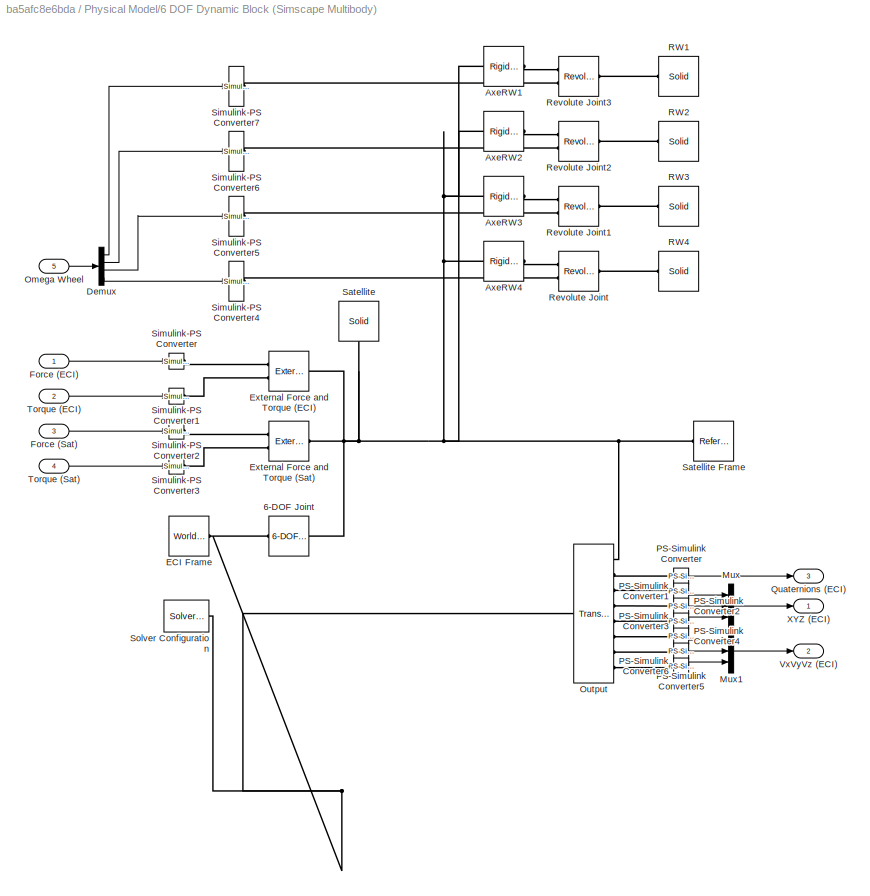
BLOCK [SubSystem] Physical Model/6 DOF Dynamic Block (Simscape Multibody)
  Commented = on
  Ports = [5, 3]
  RequestExecContextInheritance = off
BLOCK [Reference] Physical Model/6 DOF Dynamic Block (Simscape Multibody)/6-DOF Joint  REF=sm_lib/Joints/6-DOF Joint
  Ports = [0, 0, 0, 0, 0, 1, 1]
  SourceBlock = sm_lib/Joints/6-DOF Joint
  SourceProductBaseCode = MS
  SourceProductName = Simscape Multibody
  SourceType = 6-DOF Joint
BLOCK [Reference] Physical Model/6 DOF Dynamic Block (Simscape Multibody)/AxeRW1  REF=sm_lib/Frames and
Transforms/Rigid
Transform
  Ports = [0, 0, 0, 0, 0, 1, 1]
  SourceBlock = sm_lib/Frames and\nTransforms/Rigid\nTransform
  SourceProductBaseCode = MS
  SourceProductName = Simscape Multibody
  SourceType = Rigid\nTransform
BLOCK [Reference] Physical Model/6 DOF Dynamic Block (Simscape Multibody)/AxeRW2  REF=sm_lib/Frames and
Transforms/Rigid
Transform
  Ports = [0, 0, 0, 0, 0, 1, 1]
  SourceBlock = sm_lib/Frames and\nTransforms/Rigid\nTransform
  SourceProductBaseCode = MS
  SourceProductName = Simscape Multibody
  SourceType = Rigid\nTransform
BLOCK [Reference] Physical Model/6 DOF Dynamic Block (Simscape Multibody)/AxeRW3  REF=sm_lib/Frames and
Transforms/Rigid
Transform
  Ports = [0, 0, 0, 0, 0, 1, 1]
  SourceBlock = sm_lib/Frames and\nTransforms/Rigid\nTransform
  SourceProductBaseCode = MS
  SourceProductName = Simscape Multibody
  SourceType = Rigid\nTransform
BLOCK [Reference] Physical Model/6 DOF Dynamic Block (Simscape Multibody)/AxeRW4  REF=sm_lib/Frames and
Transforms/Rigid
Transform
  Ports = [0, 0, 0, 0, 0, 1, 1]
  SourceBlock = sm_lib/Frames and\nTransforms/Rigid\nTransform
  SourceProductBaseCode = MS
  SourceProductName = Simscape Multibody
  SourceType = Rigid\nTransform
BLOCK [Demux] Physical Model/6 DOF Dynamic Block (Simscape Multibody)/Demux
  DisplayOption = bar
  Ports = [1, 4]
BLOCK [Reference] Physical Model/6 DOF Dynamic Block (Simscape Multibody)/ECI Frame  REF=sm_lib/Frames and
Transforms/World Frame
  Ports = [0, 0, 0, 0, 0, 0, 1]
  SourceBlock = sm_lib/Frames and\nTransforms/World Frame
  SourceProductBaseCode = MS
  SourceProductName = Simscape Multibody
  SourceType = World Frame
BLOCK [Reference] Physical Model/6 DOF Dynamic Block (Simscape Multibody)/External Force and Torque (ECI)  REF=sm_lib/Forces and
Torques/External Force
and Torque
  Ports = [0, 0, 0, 0, 0, 2, 1]
  SourceBlock = sm_lib/Forces and\nTorques/External Force\nand Torque
  SourceProductBaseCode = MS
  SourceProductName = Simscape Multibody
  SourceType = External Force\nand Torque
BLOCK [Reference] Physical Model/6 DOF Dynamic Block (Simscape Multibody)/External Force and Torque (Sat)  REF=sm_lib/Forces and
Torques/External Force
and Torque
  Ports = [0, 0, 0, 0, 0, 2, 1]
  SourceBlock = sm_lib/Forces and\nTorques/External Force\nand Torque
  SourceProductBaseCode = MS
  SourceProductName = Simscape Multibody
  SourceType = External Force\nand Torque
BLOCK [Inport] Physical Model/6 DOF Dynamic Block (Simscape Multibody)/Force (ECI)
  IconDisplay = Port number
BLOCK [Inport] Physical Model/6 DOF Dynamic Block (Simscape Multibody)/Force (Sat)
  IconDisplay = Port number
  Port = 3
BLOCK [Mux] Physical Model/6 DOF Dynamic Block (Simscape Multibody)/Mux
  DisplayOption = bar
  Inputs = 3
  Ports = [3, 1]
BLOCK [Mux] Physical Model/6 DOF Dynamic Block (Simscape Multibody)/Mux1
  DisplayOption = bar
  Inputs = 3
  Ports = [3, 1]
BLOCK [Inport] Physical Model/6 DOF Dynamic Block (Simscape Multibody)/Omega Wheel
  IconDisplay = Port number
  Port = 5
BLOCK [Reference] Physical Model/6 DOF Dynamic Block (Simscape Multibody)/Output  REF=sm_lib/Frames and
Transforms/Transform
Sensor
  Ports = [0, 0, 0, 0, 0, 1, 8]
  SourceBlock = sm_lib/Frames and\nTransforms/Transform\nSensor
  SourceProductBaseCode = MS
  SourceProductName = Simscape Multibody
  SourceType = Transform\nSensor
BLOCK [Reference] Physical Model/6 DOF Dynamic Block (Simscape Multibody)/PS-Simulink Converter  REF=nesl_utility/PS-Simulink
Converter
  Ports = [0, 1, 0, 0, 0, 1]
  SourceBlock = nesl_utility/PS-Simulink\nConverter
  SourceProductBaseCode = SS
  SourceProductName = Simscape
  SourceType = PS-Simulink\nConverter
BLOCK [Reference] Physical Model/6 DOF Dynamic Block (Simscape Multibody)/PS-Simulink Converter1  REF=nesl_utility/PS-Simulink
Converter
  Ports = [0, 1, 0, 0, 0, 1]
  SourceBlock = nesl_utility/PS-Simulink\nConverter
  SourceProductBaseCode = SS
  SourceProductName = Simscape
  SourceType = PS-Simulink\nConverter
BLOCK [Reference] Physical Model/6 DOF Dynamic Block (Simscape Multibody)/PS-Simulink Converter2  REF=nesl_utility/PS-Simulink
Converter
  Ports = [0, 1, 0, 0, 0, 1]
  SourceBlock = nesl_utility/PS-Simulink\nConverter
  SourceProductBaseCode = SS
  SourceProductName = Simscape
  SourceType = PS-Simulink\nConverter
BLOCK [Reference] Physical Model/6 DOF Dynamic Block (Simscape Multibody)/PS-Simulink Converter3  REF=nesl_utility/PS-Simulink
Converter
  Ports = [0, 1, 0, 0, 0, 1]
  SourceBlock = nesl_utility/PS-Simulink\nConverter
  SourceProductBaseCode = SS
  SourceProductName = Simscape
  SourceType = PS-Simulink\nConverter
BLOCK [Reference] Physical Model/6 DOF Dynamic Block (Simscape Multibody)/PS-Simulink Converter4  REF=nesl_utility/PS-Simulink
Converter
  Ports = [0, 1, 0, 0, 0, 1]
  SourceBlock = nesl_utility/PS-Simulink\nConverter
  SourceProductBaseCode = SS
  SourceProductName = Simscape
  SourceType = PS-Simulink\nConverter
BLOCK [Reference] Physical Model/6 DOF Dynamic Block (Simscape Multibody)/PS-Simulink Converter5  REF=nesl_utility/PS-Simulink
Converter
  Ports = [0, 1, 0, 0, 0, 1]
  SourceBlock = nesl_utility/PS-Simulink\nConverter
  SourceProductBaseCode = SS
  SourceProductName = Simscape
  SourceType = PS-Simulink\nConverter
BLOCK [Reference] Physical Model/6 DOF Dynamic Block (Simscape Multibody)/PS-Simulink Converter6  REF=nesl_utility/PS-Simulink
Converter
  Ports = [0, 1, 0, 0, 0, 1]
  SourceBlock = nesl_utility/PS-Simulink\nConverter
  SourceProductBaseCode = SS
  SourceProductName = Simscape
  SourceType = PS-Simulink\nConverter
BLOCK [Outport] Physical Model/6 DOF Dynamic Block (Simscape Multibody)/Quaternions (ECI)
  IconDisplay = Port number
  Port = 3
BLOCK [Reference] Physical Model/6 DOF Dynamic Block (Simscape Multibody)/RW1  REF=sm_lib/Body Elements/Solid
  Ports = [0, 0, 0, 0, 0, 0, 1]
  SourceBlock = sm_lib/Body Elements/Solid
  SourceProductBaseCode = MS
  SourceProductName = Simscape Multibody
  SourceType = Solid
BLOCK [Reference] Physical Model/6 DOF Dynamic Block (Simscape Multibody)/RW2  REF=sm_lib/Body Elements/Solid
  Ports = [0, 0, 0, 0, 0, 0, 1]
  SourceBlock = sm_lib/Body Elements/Solid
  SourceProductBaseCode = MS
  SourceProductName = Simscape Multibody
  SourceType = Solid
BLOCK [Reference] Physical Model/6 DOF Dynamic Block (Simscape Multibody)/RW3  REF=sm_lib/Body Elements/Solid
  Ports = [0, 0, 0, 0, 0, 0, 1]
  SourceBlock = sm_lib/Body Elements/Solid
  SourceProductBaseCode = MS
  SourceProductName = Simscape Multibody
  SourceType = Solid
BLOCK [Reference] Physical Model/6 DOF Dynamic Block (Simscape Multibody)/RW4  REF=sm_lib/Body Elements/Solid
  Ports = [0, 0, 0, 0, 0, 0, 1]
  SourceBlock = sm_lib/Body Elements/Solid
  SourceProductBaseCode = MS
  SourceProductName = Simscape Multibody
  SourceType = Solid
BLOCK [Reference] Physical Model/6 DOF Dynamic Block (Simscape Multibody)/Revolute Joint  REF=sm_lib/Joints/Revolute Joint
  Ports = [0, 0, 0, 0, 0, 2, 1]
  SourceBlock = sm_lib/Joints/Revolute Joint
  SourceProductBaseCode = MS
  SourceProductName = Simscape Multibody
  SourceType = Revolute Joint
BLOCK [Reference] Physical Model/6 DOF Dynamic Block (Simscape Multibody)/Revolute Joint1  REF=sm_lib/Joints/Revolute Joint
  Ports = [0, 0, 0, 0, 0, 2, 1]
  SourceBlock = sm_lib/Joints/Revolute Joint
  SourceProductBaseCode = MS
  SourceProductName = Simscape Multibody
  SourceType = Revolute Joint
BLOCK [Reference] Physical Model/6 DOF Dynamic Block (Simscape Multibody)/Revolute Joint2  REF=sm_lib/Joints/Revolute Joint
  Ports = [0, 0, 0, 0, 0, 2, 1]
  SourceBlock = sm_lib/Joints/Revolute Joint
  SourceProductBaseCode = MS
  SourceProductName = Simscape Multibody
  SourceType = Revolute Joint
BLOCK [Reference] Physical Model/6 DOF Dynamic Block (Simscape Multibody)/Revolute Joint3  REF=sm_lib/Joints/Revolute Joint
  Ports = [0, 0, 0, 0, 0, 2, 1]
  SourceBlock = sm_lib/Joints/Revolute Joint
  SourceProductBaseCode = MS
  SourceProductName = Simscape Multibody
  SourceType = Revolute Joint
BLOCK [Reference] Physical Model/6 DOF Dynamic Block (Simscape Multibody)/Satellite  REF=sm_lib/Body Elements/Solid
  Ports = [0, 0, 0, 0, 0, 0, 1]
  SourceBlock = sm_lib/Body Elements/Solid
  SourceProductBaseCode = MS
  SourceProductName = Simscape Multibody
  SourceType = Solid
BLOCK [Reference] Physical Model/6 DOF Dynamic Block (Simscape Multibody)/Satellite Frame  REF=sm_lib/Frames and
Transforms/Reference
Frame
  Ports = [0, 0, 0, 0, 0, 0, 1]
  SourceBlock = sm_lib/Frames and\nTransforms/Reference\nFrame
  SourceProductBaseCode = MS
  SourceProductName = Simscape Multibody
  SourceType = Reference\nFrame
BLOCK [Reference] Physical Model/6 DOF Dynamic Block (Simscape Multibody)/Simulink-PS Converter  REF=nesl_utility/Simulink-PS
Converter
  Ports = [1, 0, 0, 0, 0, 0, 1]
  SourceBlock = nesl_utility/Simulink-PS\nConverter
  SourceProductBaseCode = SS
  SourceProductName = Simscape
  SourceType = Simulink-PS\nConverter
BLOCK [Reference] Physical Model/6 DOF Dynamic Block (Simscape Multibody)/Simulink-PS Converter1  REF=nesl_utility/Simulink-PS
Converter
  Ports = [1, 0, 0, 0, 0, 0, 1]
  SourceBlock = nesl_utility/Simulink-PS\nConverter
  SourceProductBaseCode = SS
  SourceProductName = Simscape
  SourceType = Simulink-PS\nConverter
BLOCK [Reference] Physical Model/6 DOF Dynamic Block (Simscape Multibody)/Simulink-PS Converter2  REF=nesl_utility/Simulink-PS
Converter
  Ports = [1, 0, 0, 0, 0, 0, 1]
  SourceBlock = nesl_utility/Simulink-PS\nConverter
  SourceProductBaseCode = SS
  SourceProductName = Simscape
  SourceType = Simulink-PS\nConverter
BLOCK [Reference] Physical Model/6 DOF Dynamic Block (Simscape Multibody)/Simulink-PS Converter3  REF=nesl_utility/Simulink-PS
Converter
  Ports = [1, 0, 0, 0, 0, 0, 1]
  SourceBlock = nesl_utility/Simulink-PS\nConverter
  SourceProductBaseCode = SS
  SourceProductName = Simscape
  SourceType = Simulink-PS\nConverter
BLOCK [Reference] Physical Model/6 DOF Dynamic Block (Simscape Multibody)/Simulink-PS Converter4  REF=nesl_utility/Simulink-PS
Converter
  Ports = [1, 0, 0, 0, 0, 0, 1]
  SourceBlock = nesl_utility/Simulink-PS\nConverter
  SourceProductBaseCode = SS
  SourceProductName = Simscape
  SourceType = Simulink-PS\nConverter
BLOCK [Reference] Physical Model/6 DOF Dynamic Block (Simscape Multibody)/Simulink-PS Converter5  REF=nesl_utility/Simulink-PS
Converter
  Ports = [1, 0, 0, 0, 0, 0, 1]
  SourceBlock = nesl_utility/Simulink-PS\nConverter
  SourceProductBaseCode = SS
  SourceProductName = Simscape
  SourceType = Simulink-PS\nConverter
BLOCK [Reference] Physical Model/6 DOF Dynamic Block (Simscape Multibody)/Simulink-PS Converter6  REF=nesl_utility/Simulink-PS
Converter
  Ports = [1, 0, 0, 0, 0, 0, 1]
  SourceBlock = nesl_utility/Simulink-PS\nConverter
  SourceProductBaseCode = SS
  SourceProductName = Simscape
  SourceType = Simulink-PS\nConverter
BLOCK [Reference] Physical Model/6 DOF Dynamic Block (Simscape Multibody)/Simulink-PS Converter7  REF=nesl_utility/Simulink-PS
Converter
  Ports = [1, 0, 0, 0, 0, 0, 1]
  SourceBlock = nesl_utility/Simulink-PS\nConverter
  SourceProductBaseCode = SS
  SourceProductName = Simscape
  SourceType = Simulink-PS\nConverter
BLOCK [Reference] Physical Model/6 DOF Dynamic Block (Simscape Multibody)/Solver Configuration  REF=nesl_utility/Solver
Configuration
  Ports = [0, 0, 0, 0, 0, 0, 1]
  SourceBlock = nesl_utility/Solver\nConfiguration
  SourceProductBaseCode = SS
  SourceProductName = Simscape
  SourceType = Solver\nConfiguration
BLOCK [Inport] Physical Model/6 DOF Dynamic Block (Simscape Multibody)/Torque (ECI)
  IconDisplay = Port number
  Port = 2
BLOCK [Inport] Physical Model/6 DOF Dynamic Block (Simscape Multibody)/Torque (Sat)
  IconDisplay = Port number
  Port = 4
BLOCK [Outport] Physical Model/6 DOF Dynamic Block (Simscape Multibody)/VxVyVz (ECI)
  IconDisplay = Port number
  Port = 2
BLOCK [Outport] Physical Model/6 DOF Dynamic Block (Simscape Multibody)/XYZ (ECI)
  IconDisplay = Port number
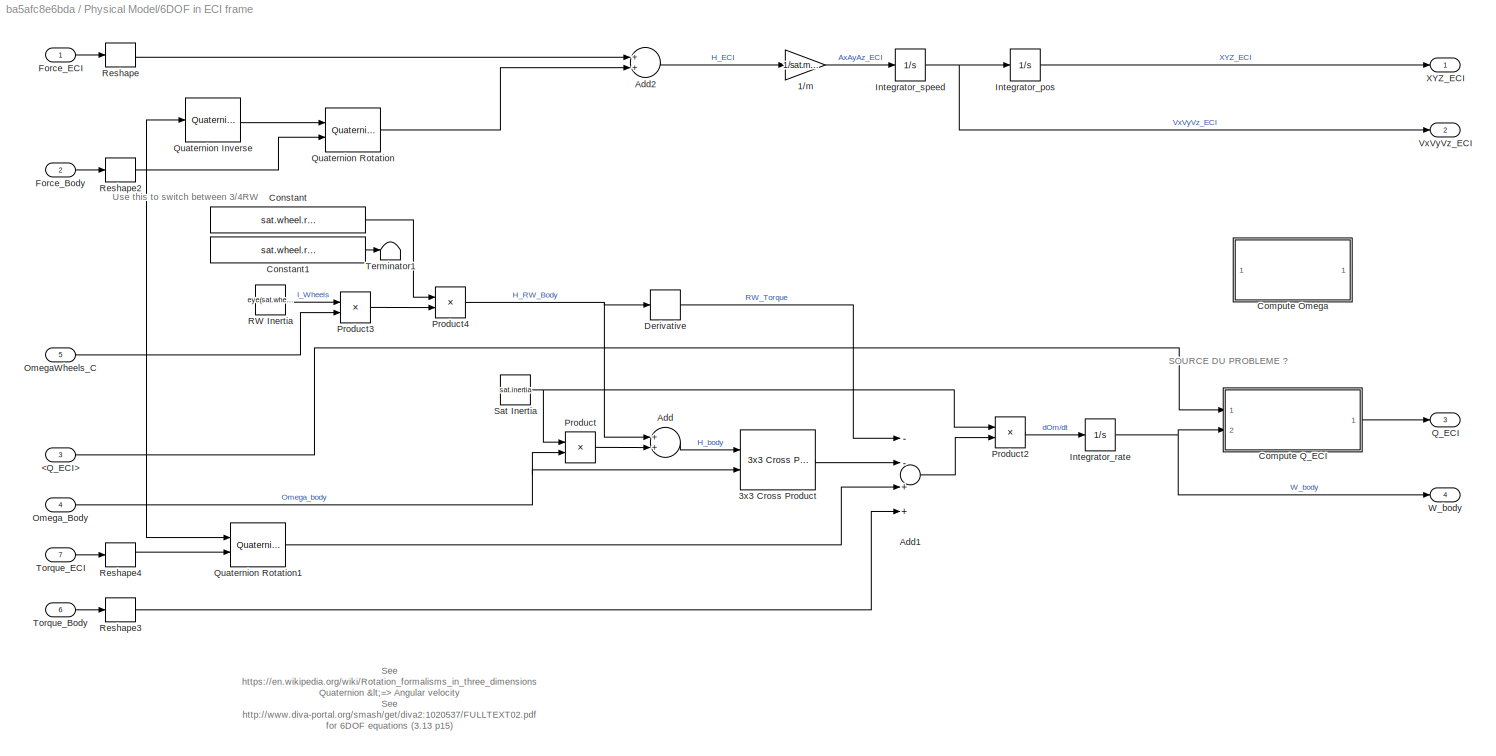
BLOCK [SubSystem] Physical Model/6DOF in ECI frame
  Ports = [7, 4]
  RequestExecContextInheritance = off
BLOCK [Gain] Physical Model/6DOF in ECI frame/1//m
  Gain = 1/sat.mass
  OutDataTypeStr = Inherit: Inherit via internal rule
  ParamDataTypeStr = Inherit: Inherit via internal rule
  SaturateOnIntegerOverflow = off
BLOCK [Reference] Physical Model/6DOF in ECI frame/3x3 Cross Product  REF=sharedutil/3x3 Cross Product
  Ports = [2, 1]
  SourceBlock = sharedutil/3x3 Cross Product
  SourceProductBaseCode = AE
  SourceProductName = Aerospace Blockset
  SourceType = CrossProduct
BLOCK [Inport] Physical Model/6DOF in ECI frame/<Q_ECI>
  IconDisplay = Port number
  Port = 3
BLOCK [Sum] Physical Model/6DOF in ECI frame/Add
  InputSameDT = off
  OutDataTypeStr = Inherit: Inherit via internal rule
  Ports = [2, 1]
  SaturateOnIntegerOverflow = off
BLOCK [Sum] Physical Model/6DOF in ECI frame/Add1
  InputSameDT = off
  Inputs = --++
  OutDataTypeStr = Inherit: Inherit via internal rule
  Ports = [4, 1]
  SaturateOnIntegerOverflow = off
BLOCK [Sum] Physical Model/6DOF in ECI frame/Add2
  InputSameDT = off
  OutDataTypeStr = Inherit: Inherit via internal rule
  Ports = [2, 1]
  SaturateOnIntegerOverflow = off
BLOCK [SubSystem] Physical Model/6DOF in ECI frame/Compute Omega
  Commented = on
  Ports = [1, 1]
  RequestExecContextInheritance = off
BLOCK [Inport] Physical Model/6DOF in ECI frame/Compute Omega/<Q_ECI>
  IconDisplay = Port number
BLOCK [Demux] Physical Model/6DOF in ECI frame/Compute Omega/Demux
  DisplayOption = bar
  Outputs = 2
  Ports = [1, 2]
BLOCK [Derivative] Physical Model/6DOF in ECI frame/Compute Omega/Derivative
BLOCK [Gain] Physical Model/6DOF in ECI frame/Compute Omega/Gain
  Gain = 2
  OutDataTypeStr = Inherit: Inherit via internal rule
  ParamDataTypeStr = Inherit: Inherit via internal rule
  SaturateOnIntegerOverflow = off
BLOCK [Outport] Physical Model/6DOF in ECI frame/Compute Omega/Omega_body
  IconDisplay = Port number
  PortDimensions = [3 1]
BLOCK [Reference] Physical Model/6DOF in ECI frame/Compute Omega/Quaternion Conjugate  REF=aerolibutil/Quaternion
Conjugate
  Ports = [1, 1]
  SourceBlock = aerolibutil/Quaternion\nConjugate
  SourceProductBaseCode = AE
  SourceProductName = Aerospace Blockset
  SourceType = Quaternion Conjugate
BLOCK [Reference] Physical Model/6DOF in ECI frame/Compute Omega/Quaternion Multiplication  REF=aerolibutil/Quaternion
Multiplication
  Ports = [2, 1]
  SourceBlock = aerolibutil/Quaternion\nMultiplication
  SourceProductBaseCode = AE
  SourceProductName = Aerospace Blockset
  SourceType = Quaternion Multiplication
BLOCK [Reshape] Physical Model/6DOF in ECI frame/Compute Omega/Reshape
  OutputDimensionality = Column vector (2-D)
  Ports = [1, 1]
BLOCK [Terminator] Physical Model/6DOF in ECI frame/Compute Omega/Terminator
BLOCK [SubSystem] Physical Model/6DOF in ECI frame/Compute Q_ECI
  Ports = [2, 1]
  RequestExecContextInheritance = off
BLOCK [Inport] Physical Model/6DOF in ECI frame/Compute Q_ECI/<Q_ECI>
  IconDisplay = Port number
BLOCK [Gain] Physical Model/6DOF in ECI frame/Compute Q_ECI/Gain
  Gain = 1/2
  OutDataTypeStr = Inherit: Inherit via internal rule
  ParamDataTypeStr = Inherit: Inherit via internal rule
  SaturateOnIntegerOverflow = off
BLOCK [Ground] Physical Model/6DOF in ECI frame/Compute Q_ECI/Ground
BLOCK [Integrator] Physical Model/6DOF in ECI frame/Compute Q_ECI/Integrator_quat
  InitialCondition = [1 0 0 0]
  Ports = [1, 1]
BLOCK [Mux] Physical Model/6DOF in ECI frame/Compute Q_ECI/Mux
  DisplayOption = bar
  Inputs = 2
  Ports = [2, 1]
BLOCK [Inport] Physical Model/6DOF in ECI frame/Compute Q_ECI/Omega_body
  IconDisplay = Port number
  Port = 2
BLOCK [Outport] Physical Model/6DOF in ECI frame/Compute Q_ECI/Q_ECI
  IconDisplay = Port number
BLOCK [Reference] Physical Model/6DOF in ECI frame/Compute Q_ECI/Quaternion Multiplication  REF=aerolibutil/Quaternion
Multiplication
  Ports = [2, 1]
  SourceBlock = aerolibutil/Quaternion\nMultiplication
  SourceProductBaseCode = AE
  SourceProductName = Aerospace Blockset
  SourceType = Quaternion Multiplication
BLOCK [Reference] Physical Model/6DOF in ECI frame/Compute Q_ECI/Quaternion Normalize  REF=sharedutil/Quaternion
Normalize
  Ports = [1, 1]
  SourceBlock = sharedutil/Quaternion\nNormalize
  SourceProductBaseCode = AE
  SourceProductName = Aerospace Blockset
  SourceType = Quaternion Normalize
BLOCK [Constant] Physical Model/6DOF in ECI frame/Constant
  Value = sat.wheel.repartition_matrix_3RW
BLOCK [Constant] Physical Model/6DOF in ECI frame/Constant1
  Value = sat.wheel.repartition_matrix_4RW
BLOCK [Derivative] Physical Model/6DOF in ECI frame/Derivative
BLOCK [Inport] Physical Model/6DOF in ECI frame/Force_Body
  IconDisplay = Port number
  Port = 2
BLOCK [Inport] Physical Model/6DOF in ECI frame/Force_ECI
  IconDisplay = Port number
BLOCK [Integrator] Physical Model/6DOF in ECI frame/Integrator_pos
  Ports = [1, 1]
BLOCK [Integrator] Physical Model/6DOF in ECI frame/Integrator_rate
  Ports = [1, 1]
BLOCK [Integrator] Physical Model/6DOF in ECI frame/Integrator_speed
  Ports = [1, 1]
BLOCK [Inport] Physical Model/6DOF in ECI frame/OmegaWheels_C
  IconDisplay = Port number
  Port = 5
BLOCK [Inport] Physical Model/6DOF in ECI frame/Omega_Body 
  IconDisplay = Port number
  Port = 4
BLOCK [Product] Physical Model/6DOF in ECI frame/Product
  InputSameDT = off
  Multiplication = Matrix(*)
  OutDataTypeStr = Inherit: Inherit via internal rule
  Ports = [2, 1]
  RndMeth = Floor
  SaturateOnIntegerOverflow = off
BLOCK [Product] Physical Model/6DOF in ECI frame/Product2
  InputSameDT = off
  Inputs = /*
  Multiplication = Matrix(*)
  OutDataTypeStr = Inherit: Inherit via internal rule
  Ports = [2, 1]
  RndMeth = Floor
  SaturateOnIntegerOverflow = off
BLOCK [Product] Physical Model/6DOF in ECI frame/Product3
  InputSameDT = off
  Multiplication = Matrix(*)
  OutDataTypeStr = Inherit: Inherit via internal rule
  Ports = [2, 1]
  RndMeth = Floor
  SaturateOnIntegerOverflow = off
BLOCK [Product] Physical Model/6DOF in ECI frame/Product4
  InputSameDT = off
  Multiplication = Matrix(*)
  OutDataTypeStr = Inherit: Inherit via internal rule
  Ports = [2, 1]
  RndMeth = Floor
  SaturateOnIntegerOverflow = off
BLOCK [Outport] Physical Model/6DOF in ECI frame/Q_ECI
  IconDisplay = Port number
  Port = 3
BLOCK [Reference] Physical Model/6DOF in ECI frame/Quaternion Inverse  REF=aerolibutil/Quaternion
Inverse
  Ports = [1, 1]
  SourceBlock = aerolibutil/Quaternion\nInverse
  SourceProductBaseCode = AE
  SourceProductName = Aerospace Blockset
  SourceType = Quaternion Inverse
BLOCK [Reference] Physical Model/6DOF in ECI frame/Quaternion Rotation  REF=aerolibutil/Quaternion
Rotation
  Ports = [2, 1]
  SourceBlock = aerolibutil/Quaternion\nRotation
  SourceProductBaseCode = AE
  SourceProductName = Aerospace Blockset
  SourceType = Quaternion Rotation
BLOCK [Reference] Physical Model/6DOF in ECI frame/Quaternion Rotation1  REF=aerolibutil/Quaternion
Rotation
  Ports = [2, 1]
  SourceBlock = aerolibutil/Quaternion\nRotation
  SourceProductBaseCode = AE
  SourceProductName = Aerospace Blockset
  SourceType = Quaternion Rotation
BLOCK [Constant] Physical Model/6DOF in ECI frame/RW Inertia
  Value = eye(sat.wheel.number)*sat.wheel.inertia
BLOCK [Reshape] Physical Model/6DOF in ECI frame/Reshape
  OutputDimensionality = Column vector (2-D)
  Ports = [1, 1]
BLOCK [Reshape] Physical Model/6DOF in ECI frame/Reshape2
  OutputDimensionality = Column vector (2-D)
  Ports = [1, 1]
BLOCK [Reshape] Physical Model/6DOF in ECI frame/Reshape3
  OutputDimensionality = Column vector (2-D)
  Ports = [1, 1]
BLOCK [Reshape] Physical Model/6DOF in ECI frame/Reshape4
  OutputDimensionality = Column vector (2-D)
  Ports = [1, 1]
BLOCK [Constant] Physical Model/6DOF in ECI frame/Sat Inertia
  Value = sat.inertia
BLOCK [Terminator] Physical Model/6DOF in ECI frame/Terminator1
BLOCK [Inport] Physical Model/6DOF in ECI frame/Torque_Body
  IconDisplay = Port number
  Port = 6
BLOCK [Inport] Physical Model/6DOF in ECI frame/Torque_ECI
  IconDisplay = Port number
  Port = 7
  PortDimensions = 3
BLOCK [Outport] Physical Model/6DOF in ECI frame/VxVyVz_ECI
  IconDisplay = Port number
  Port = 2
BLOCK [Outport] Physical Model/6DOF in ECI frame/W_body
  IconDisplay = Port number
  Port = 4
BLOCK [Outport] Physical Model/6DOF in ECI frame/XYZ_ECI
  IconDisplay = Port number
BLOCK [Sum] Physical Model/Add
  InputSameDT = off
  OutDataTypeStr = Inherit: Inherit via internal rule
  Ports = [2, 1]
  SaturateOnIntegerOverflow = off
BLOCK [Sum] Physical Model/Add1
  InputSameDT = off
  OutDataTypeStr = Inherit: Inherit via internal rule
  Ports = [2, 1]
  SaturateOnIntegerOverflow = off
BLOCK [BusCreator] Physical Model/Bus Creator
  DisplayOption = bar
  InheritFromInputs = on
  Inputs = 4
  Ports = [4, 1]
BLOCK [BusSelector] Physical Model/Bus Selector
  OutputAsBus = off
  OutputSignals = XYZ_ECI,Q_ECI,W_body
  Ports = [1, 3]
BLOCK [Clock] Physical Model/Clock
BLOCK [Inport] Physical Model/DisturbanceForce (ECI)
  IconDisplay = Port number
  Port = 5
BLOCK [Inport] Physical Model/DisturbanceTorque (ECI)
  IconDisplay = Port number
  Port = 6
BLOCK [Inport] Physical Model/Magnetotorquers_C
  IconDisplay = Port number
  Port = 3
BLOCK [Inport] Physical Model/OmegaWheels_C
  IconDisplay = Port number
  Port = 2
BLOCK [Reshape] Physical Model/Reshape
  Ports = [1, 1]
BLOCK [Reshape] Physical Model/Reshape1
  Ports = [1, 1]
BLOCK [Reshape] Physical Model/Reshape2
  OutputDimensionality = Column vector (2-D)
  Ports = [1, 1]
BLOCK [SubSystem] Physical Model/Spherical Harmonic Gravity
  Ports = [2, 1]
  RequestExecContextInheritance = off
  SystemSampleTime = 1
  TreatAsAtomicUnit = on
BLOCK [Reference] Physical Model/Spherical Harmonic Gravity/Direction Cosine Matrix ECI to ECEF  REF=aerolibtransform2/Direction Cosine Matrix
ECI to ECEF
  AttributesFormatString = %<red>
  Ports = [5, 1]
  SourceBlock = aerolibtransform2/Direction Cosine Matrix\nECI to ECEF
  SourceProductBaseCode = AE
  SourceProductName = Aerospace Blockset
  SourceType = DCMECItoECEF
BLOCK [Ground] Physical Model/Spherical Harmonic Gravity/Ground2
BLOCK [Ground] Physical Model/Spherical Harmonic Gravity/Ground3
BLOCK [Ground] Physical Model/Spherical Harmonic Gravity/Ground5
BLOCK [Ground] Physical Model/Spherical Harmonic Gravity/Ground6
  Commented = on
BLOCK [Product] Physical Model/Spherical Harmonic Gravity/Product
  InputSameDT = off
  Multiplication = Matrix(*)
  OutDataTypeStr = Inherit: Inherit via internal rule
  Ports = [2, 1]
  RndMeth = Floor
  SaturateOnIntegerOverflow = off
BLOCK [Product] Physical Model/Spherical Harmonic Gravity/Product1
  InputSameDT = off
  Inputs = /*
  Multiplication = Matrix(*)
  OutDataTypeStr = Inherit: Inherit via internal rule
  Ports = [2, 1]
  RndMeth = Floor
  SaturateOnIntegerOverflow = off
BLOCK [Reference] Physical Model/Spherical Harmonic Gravity/Spherical Harmonic Gravity Model  REF=aerolibgravity2/Spherical Harmonic Gravity Model
  Ports = [1, 1]
  SourceBlock = aerolibgravity2/Spherical Harmonic Gravity Model
  SourceProductBaseCode = AE
  SourceProductName = Aerospace Blockset
  SourceType = Spherical Harmonic Gravity Model
BLOCK [Inport] Physical Model/Spherical Harmonic Gravity/Time (sec)
  IconDisplay = Port number
  Port = 2
BLOCK [Math] Physical Model/Spherical Harmonic Gravity/Transpose
  Operator = transpose
  Ports = [1, 1]
BLOCK [Inport] Physical Model/Spherical Harmonic Gravity/XYZ_ECI
  IconDisplay = Port number
BLOCK [Outport] Physical Model/Spherical Harmonic Gravity/g_ECI (m//s²)
  IconDisplay = Port number
  VectorParamsAs1DForOutWhenUnconnected = on
BLOCK [SubSystem] Physical Model/Thruster
  Ports = [1, 2]
  RequestExecContextInheritance = off
BLOCK [Inport] Physical Model/Thruster (Boolean)
  IconDisplay = Port number
  Port = 4
BLOCK [Constant] Physical Model/Thruster/Constant
  Value = 0
BLOCK [Reference] Physical Model/Thruster/Cross Product  REF=vrlib/Utilities/Cross Product
  Ports = [2, 1]
  SourceBlock = vrlib/Utilities/Cross Product
  SourceProductBaseCode = SL
  SourceProductName = Simulink
  SourceType = Cross Product
BLOCK [Outport] Physical Model/Thruster/Force (G_sat)
  IconDisplay = Port number
BLOCK [If] Physical Model/Thruster/If
  IfExpression = u1
  Ports = [1, 2]
BLOCK [SubSystem] Physical Model/Thruster/If Action Subsystem
  Ports = [1, 1, 0, 0, 0, 0, 0, 1]
  RequestExecContextInheritance = off
  TreatAsAtomicUnit = on
BLOCK [ActionPort] Physical Model/Thruster/If Action Subsystem/Action Port
  ActionPortLabel = if(u1)
BLOCK [Inport] Physical Model/Thruster/If Action Subsystem/In1
  IconDisplay = Port number
BLOCK [Outport] Physical Model/Thruster/If Action Subsystem/Out1
  IconDisplay = Port number
  VectorParamsAs1DForOutWhenUnconnected = on
BLOCK [SubSystem] Physical Model/Thruster/If Action Subsystem1
  Ports = [1, 1, 0, 0, 0, 0, 0, 1]
  RequestExecContextInheritance = off
  TreatAsAtomicUnit = on
BLOCK [ActionPort] Physical Model/Thruster/If Action Subsystem1/Action Port
  ActionPortLabel = else
BLOCK [Inport] Physical Model/Thruster/If Action Subsystem1/In1
  IconDisplay = Port number
BLOCK [Outport] Physical Model/Thruster/If Action Subsystem1/Out1
  IconDisplay = Port number
  VectorParamsAs1DForOutWhenUnconnected = on
BLOCK [Merge] Physical Model/Thruster/Merge
  Ports = [2, 1]
BLOCK [Outport] Physical Model/Thruster/Moment (G_sat)
  IconDisplay = Port number
  Port = 2
BLOCK [Inport] Physical Model/Thruster/On//Off (Boolean)
  IconDisplay = Port number
  OutDataTypeStr = boolean
BLOCK [Product] Physical Model/Thruster/Product
  InputSameDT = off
  OutDataTypeStr = Inherit: Inherit via internal rule
  Ports = [2, 1]
  RndMeth = Floor
  SaturateOnIntegerOverflow = off
BLOCK [Constant] Physical Model/Thruster/Thruster Force
  Value = sat.thruster.force
BLOCK [Constant] Physical Model/Thruster/unit vector of thrust
  Value = sat.thruster.dir
BLOCK [Constant] Physical Model/Thruster/vector G-Thrust point
  Value = sat.thruster.point
BLOCK [Inport] Physical Model/U_in
  IconDisplay = Port number
BLOCK [Outport] Physical Model/U_out
  IconDisplay = Port number
BLOCK [Gain] Physical Model/m
  Gain = sat.mass
  OutDataTypeStr = Inherit: Inherit via internal rule
  ParamDataTypeStr = Inherit: Inherit via internal rule
  SaturateOnIntegerOverflow = off
BLOCK [Reference] Planetary Ephemeris  REF=aerolibcelestial/Planetary Ephemeris
  AttributesFormatString = Ephemeris Data Unavailable
  Ports = [1, 1]
  SourceBlock = aerolibcelestial/Planetary Ephemeris
  SourceProductBaseCode = AE
  SourceProductName = Aerospace Blockset
  SourceType = PlanetaryEphemeris
BLOCK [Reference] Quaternion Inverse  REF=aerolibutil/Quaternion
Inverse
  Ports = [1, 1]
  SourceBlock = aerolibutil/Quaternion\nInverse
  SourceProductBaseCode = AE
  SourceProductName = Aerospace Blockset
  SourceType = Quaternion Inverse
BLOCK [Reference] Quaternion Multiplication  REF=aerolibutil/Quaternion
Multiplication
  Ports = [2, 1]
  SourceBlock = aerolibutil/Quaternion\nMultiplication
  SourceProductBaseCode = AE
  SourceProductName = Aerospace Blockset
  SourceType = Quaternion Multiplication
BLOCK [Reference] Quaternions to Rotation Angles  REF=sharedtransform/Quaternions to Rotation Angles
  AttributesFormatString = Rotation Order: %<rotationOrder>
  Ports = [1, 1]
  SourceBlock = sharedtransform/Quaternions to Rotation Angles
  SourceProductBaseCode = AE
  SourceProductName = Aerospace Blockset
  SourceType = Quat2Ang
BLOCK [Scope] RW Speed
  Floating = off
  NumInputPorts = 1
  Ports = [1]
  ScopeSpecificationString = Simulink.scopes.TimeScopeBlockCfg('CurrentConfiguration', extmgr.ConfigurationSet(extmgr.Configuration('Core','General UI',true),extmgr.Configuration('Core','Source UI',true),extmgr.Configuration('Sources','WiredSimulink',true,'DataLoggingVariableName','ScopeData2'),extmgr.Configuration('Visuals','Time Domain',true,'SerializedDisplays',{struct('MinYLimReal','-18228.74108','MaxYLimReal','42025.4156...<+1855ch>
BLOCK [Scope] Rate
  Floating = off
  NumInputPorts = 1
  Ports = [1]
  ScopeSpecificationString = Simulink.scopes.TimeScopeBlockCfg('CurrentConfiguration', extmgr.ConfigurationSet(extmgr.Configuration('Core','General UI',true),extmgr.Configuration('Core','Source UI',true),extmgr.Configuration('Sources','WiredSimulink',true,'DataLoggingVariableName','ScopeData1'),extmgr.Configuration('Visuals','Time Domain',true,'SerializedDisplays',{struct('MinYLimReal','-24.03008','MaxYLimReal','27.88351','YL...<+1867ch>
BLOCK [SubSystem] Signal Logging
  Ports = [3]
  RequestExecContextInheritance = off
BLOCK [BusSelector] Signal Logging/Bus Selector4
  OutputAsBus = off
  OutputSignals = XYZ_ECI,VxVyVz_ECI,Q_ECI,W_body
  Ports = [1, 4]
BLOCK [Inport] Signal Logging/Qc
  IconDisplay = Port number
  Port = 3
BLOCK [Inport] Signal Logging/RWspeed
  IconDisplay = Port number
  Port = 2
BLOCK [ToWorkspace] Signal Logging/To Workspace
  FixptAsFi = on
  MaxDataPoints = inf
  Ports = [1]
  SampleTime = -1
  Save2DSignal = 2-D array (concatenate along first dimension)
  SaveFormat = Timeseries
  VariableName = sat_pos
BLOCK [ToWorkspace] Signal Logging/To Workspace1
  FixptAsFi = on
  MaxDataPoints = inf
  Ports = [1]
  SampleTime = -1
  Save2DSignal = 2-D array (concatenate along first dimension)
  SaveFormat = Timeseries
  VariableName = sat_speed
BLOCK [ToWorkspace] Signal Logging/To Workspace2
  FixptAsFi = on
  MaxDataPoints = inf
  Ports = [1]
  SampleTime = -1
  Save2DSignal = 2-D array (concatenate along first dimension)
  SaveFormat = Timeseries
  VariableName = sat_Q
BLOCK [ToWorkspace] Signal Logging/To Workspace3
  FixptAsFi = on
  MaxDataPoints = inf
  Ports = [1]
  SampleTime = -1
  Save2DSignal = 2-D array (concatenate along first dimension)
  SaveFormat = Timeseries
  VariableName = sat_omega
BLOCK [ToWorkspace] Signal Logging/To Workspace4
  FixptAsFi = on
  MaxDataPoints = inf
  Ports = [1]
  SampleTime = -1
  Save2DSignal = 2-D array (concatenate along first dimension)
  SaveFormat = Timeseries
  VariableName = RW_omega
BLOCK [ToWorkspace] Signal Logging/To Workspace5
  FixptAsFi = on
  MaxDataPoints = inf
  Ports = [1]
  SampleTime = -1
  Save2DSignal = 2-D array (concatenate along first dimension)
  SaveFormat = Timeseries
  VariableName = sat_Qc
BLOCK [Inport] Signal Logging/U
  IconDisplay = Port number
BLOCK [Terminator] Terminator
BLOCK [Reference] Unwrap  REF=dspsigops/Unwrap
  Ports = [1, 1]
  SourceBlock = dspsigops/Unwrap
  SourceProductBaseCode = DS
  SourceProductName = DSP System Toolbox
  SourceType = Unwrap
  UserDataPersistent = on
BLOCK [SubSystem] rv2orb
  Commented = on
  ErrorFcn = Stateflow.Translate.translate
  PermitHierarchicalResolution = ExplicitOnly
  Ports = [3, 10]
  RequestExecContextInheritance = off
  SFBlockType = MATLAB Function
  TreatAsAtomicUnit = on
BLOCK [Demux] rv2orb/ Demux 
  Outputs = 1
  Ports = [1, 1]
BLOCK [S-Function] rv2orb/ SFunction 
  EnableBusSupport = on
  FunctionName = sf_sfun
  PortCounts = [3 11]
  Ports = [3, 11]
  SFcnIsStateOwnerBlock = off
  SFunctionDeploymentMode = off
  Tag = Stateflow S-Function mission 1
BLOCK [Terminator] rv2orb/ Terminator 
BLOCK [Outport] rv2orb/O
  IconDisplay = Port number
  Port = 4
BLOCK [Outport] rv2orb/a
  IconDisplay = Port number
BLOCK [Outport] rv2orb/argLat
  IconDisplay = Port number
  Port = 8
BLOCK [Outport] rv2orb/eMag
  IconDisplay = Port number
  Port = 2
BLOCK [Outport] rv2orb/i
  IconDisplay = Port number
  Port = 3
BLOCK [Outport] rv2orb/lonPer
  IconDisplay = Port number
  Port = 9
BLOCK [Inport] rv2orb/mu
  IconDisplay = Port number
  Port = 3
BLOCK [Outport] rv2orb/nu
  IconDisplay = Port number
  Port = 6
BLOCK [Outport] rv2orb/o
  IconDisplay = Port number
  Port = 5
BLOCK [Outport] rv2orb/p
  IconDisplay = Port number
  Port = 10
BLOCK [Inport] rv2orb/r
  IconDisplay = Port number
BLOCK [Outport] rv2orb/truLon
  IconDisplay = Port number
  Port = 7
BLOCK [Inport] rv2orb/v
  IconDisplay = Port number
  Port = 2
ANNOTATION (root): 3 block where initial time needs to be changed -sec => JD -IGRF -ECI to LLA
ANNOTATION (root): IONSAT ADCS SIMULATION
ANNOTATION (root): angle (°)
ANNOTATION (root): rate (°/s)
ANNOTATION (root): Quaternion : angle first PreLoad Callback : loads SatConstant.m automatically (contains all parameters) Go into Physical model/6DOF to switch to 4RW (and set sat.wheel.number to 4) Fixed-step size with 1s step is recommended (higher value => errors with RWs)
ANNOTATION (root): ArgPe (°)
ANNOTATION (root): RAAN (°)
ANNOTATION (root): TrueAn (°)
ANNOTATION (root): e
ANNOTATION (root): i (°)
ANNOTATION (root): sma (km)
ANNOTATION (root): Initial angle and angular rate
ANNOTATION (root): Initial orbit (ISS-like)
ANNOTATION (root): Notes
ANNOTATION (root): Pointing mode
ANNOTATION (root): Viewer
ANNOTATION Controller: Choix d'un contrôleur PID : plus simple et robuste qu'un LQR/SliddingSurface ou autre
ANNOTATION Controller: Runs at 1Hz
ANNOTATION Controller/RW1: Entrées: - Moment de commande (déjà projeté sur l'axe de la roue...) Sorties: - Omega de commande à appliquer
ANNOTATION Controller/RW2: Entrées: - Moment de commande (déjà projeté sur l'axe de la roue...) Sorties: - Omega de commande à appliquer
ANNOTATION Controller/RW3: Entrées: - Moment de commande (déjà projeté sur l'axe de la roue...) Sorties: - Omega de commande à appliquer
ANNOTATION Controller/RW4: Entrées: - Moment de commande (déjà projeté sur l'axe de la roue...) Sorties: - Omega de commande à appliquer
ANNOTATION IGRF Computation block: Needs Initial time What are other inputs ?
ANNOTATION Initialize Function: See this keplerian to cartesian code
ANNOTATION Mission: modes : 1: Nadir 2: retrograde 3: drag 4: sun_sun 5: sun aero default: nadir
ANNOTATION Mission: Runs as 1Hz
ANNOTATION Mission/q_sun_aero/Subsystem: choix : x selon V z tel que z.GS soit maximisé
ANNOTATION Mission/q_sun_sun/Subsystem1: Choix: z selon GS x tel que x.V soit maximisé
ANNOTATION Physical Model/6DOF in ECI frame: SOURCE DU PROBLEME ?
ANNOTATION Physical Model/6DOF in ECI frame: Use this to switch between 3/4RW
ANNOTATION Physical Model/6DOF in ECI frame: See https://en.wikipedia.org/wiki/Rotation_formalisms_in_three_dimensions Quaternion <=> Angular velocity See http://www.diva-portal.org/smash/get/diva2:1020537/FULLTEXT02.pdf for 6DOF equations (3.13 p15) With ω = rotation vector (Omega_body) we have : $\frac{dω}{dt} = I [−ω (t) × (Iω + h_{RW}) + T(t) − \frac{dh_{RW}}{dt} ̇ ]$
ANNOTATION Physical Model/6DOF in ECI frame/Compute Omega: https://arxiv.org/pdf/0811.2889.pdf $ω = 2q^*\frac{dq}{dt}$ (13)
ANNOTATION Physical Model/6DOF in ECI frame/Compute Q_ECI: https://arxiv.org/pdf/0811.2889.pdf $ω = 2q^*\frac{dq}{dt}$ (13) $\frac{dq}{dt} = \frac{1}{2} q * ω$ (14)
ANNOTATION Physical Model/Spherical Harmonic Gravity: Slower subsytem because it's too slow
LINE Angle Conversion:1 -> Angle:1
LINE Angular Velocity Conversion1:1 -> RW Speed:1
LINE Angular Velocity Conversion:1 -> Rate:1
LINE Basic Gravity (first order)/Constant3:1 -> Basic Gravity (first order)/Square3:2
LINE Basic Gravity (first order)/Constant:1 -> Basic Gravity (first order)/Divide:1
LINE Basic Gravity (first order)/Divide:1 -> Basic Gravity (first order)/Product:2
LINE Basic Gravity (first order)/Norm/Abs:1 -> Basic Gravity (first order)/Norm/Demux1:1
LINE Basic Gravity (first order)/Norm/Add:1 -> Basic Gravity (first order)/Norm/r**2:1
LINE Basic Gravity (first order)/Norm/Demux1:1 -> Basic Gravity (first order)/Norm/Square:1
LINE Basic Gravity (first order)/Norm/Demux1:2 -> Basic Gravity (first order)/Norm/Square1:1
LINE Basic Gravity (first order)/Norm/Demux1:3 -> Basic Gravity (first order)/Norm/Square2:1
LINE Basic Gravity (first order)/Norm/Square1:1 -> Basic Gravity (first order)/Norm/Add:2
LINE Basic Gravity (first order)/Norm/Square2:1 -> Basic Gravity (first order)/Norm/Add:3
LINE Basic Gravity (first order)/Norm/Square:1 -> Basic Gravity (first order)/Norm/Add:1
LINE Basic Gravity (first order)/Norm/u:1 -> Basic Gravity (first order)/Norm/Abs:1
LINE Basic Gravity (first order)/Norm:1 -> Basic Gravity (first order)/Square3:1
LINE Basic Gravity (first order)/Product:1 -> Basic Gravity (first order)/g_ECI (m//s²):1
LINE Basic Gravity (first order)/Square3:1 -> Basic Gravity (first order)/Divide:2
NET Basic Gravity (first order)/XYZ_ECI:1 -> Basic Gravity (first order)/Norm:1, Basic Gravity (first order)/Product:1
LINE Bus Selector1:1 -> Demux:1
LINE Bus Selector1:2 -> Quaternion Inverse:1
LINE Bus Selector2:1 -> IGRF Computation block:1
LINE Bus Selector3:1 -> Controller:1
LINE Bus Selector3:2 -> Controller:2
NET Clock:1 -> IGRF Computation block:2, Julian Date Conversion:1
LINE Compute Quaternion/Constant:1 -> Compute Quaternion/Sum:2
LINE Compute Quaternion/Cross Product:1 -> Compute Quaternion/Mux:2
LINE Compute Quaternion/Dot Product:1 -> Compute Quaternion/Sum:1
LINE Compute Quaternion/Mux:1 -> Compute Quaternion/Quaternion Normalize:1
NET Compute Quaternion/Normalization1:1 -> Compute Quaternion/Cross Product:2, Compute Quaternion/Dot Product:2
NET Compute Quaternion/Normalization:1 -> Compute Quaternion/Cross Product:1, Compute Quaternion/Dot Product:1
LINE Compute Quaternion/Quaternion Normalize:1 -> Compute Quaternion/q:1
LINE Compute Quaternion/Sum:1 -> Compute Quaternion/Mux:1
LINE Compute Quaternion/Vect1:1 -> Compute Quaternion/Normalization:1
LINE Compute Quaternion/Vect2:1 -> Compute Quaternion/Normalization1:1
LINE Controller/Demux:1 -> Controller/RW1:1
LINE Controller/Demux:2 -> Controller/RW2:1
LINE Controller/Demux:3 -> Controller/RW3:1
LINE Controller/Extract Vect/Demux:1 -> Controller/Extract Vect/Sign:1
LINE Controller/Extract Vect/Demux:2 -> Controller/Extract Vect/Mux1:1
LINE Controller/Extract Vect/Demux:3 -> Controller/Extract Vect/Mux1:2
LINE Controller/Extract Vect/Demux:4 -> Controller/Extract Vect/Mux1:3
LINE Controller/Extract Vect/Mux1:1 -> Controller/Extract Vect/Product:2
LINE Controller/Extract Vect/Product:1 -> Controller/Extract Vect/Qvect:1
LINE Controller/Extract Vect/Qr:1 -> Controller/Extract Vect/Demux:1
LINE Controller/Extract Vect/Sign:1 -> Controller/Extract Vect/Product:1
LINE Controller/Extract Vect:1 -> Controller/Product1:2
LINE Controller/Gain:1 -> Controller/Demux:1
LINE Controller/Ground2:1 -> Controller/RW4:1
LINE Controller/Inertia:1 -> Controller/Product3:1
LINE Controller/Kd:1 -> Controller/Product2:1
LINE Controller/Kp:1 -> Controller/Product1:1
NET Controller/Mux:1 -> Controller/OmegaWheels_C:1, Controller/k_mag:1
LINE Controller/Product1:1 -> Controller/Subtract:1
LINE Controller/Product2:1 -> Controller/Subtract:2
LINE Controller/Product3:1 -> Controller/Product4:2
LINE Controller/Product4:1 -> Controller/Gain:1
LINE Controller/Q_ECI:1 -> Controller/Quaternion Inverse:1
LINE Controller/Qc_ECI:1 -> Controller/Quaternion Multiplication:2
LINE Controller/Quaternion Inverse:1 -> Controller/Quaternion Multiplication:1
LINE Controller/Quaternion Multiplication:1 -> Controller/Extract Vect:1
LINE Controller/RW1/Divide:1 -> Controller/RW1/Integrator:1
LINE Controller/RW1/Integrator:1 -> Controller/RW1/Saturation_speed:1
LINE Controller/RW1/Mc (scalar):1 -> Controller/RW1/Torque_sat:1
LINE Controller/RW1/Saturation_speed:1 -> Controller/RW1/Omega_C (scalar):1
LINE Controller/RW1/Torque_sat:1 -> Controller/RW1/Divide:1
LINE Controller/RW1/Wheel Inertia:1 -> Controller/RW1/Divide:2
LINE Controller/RW1:1 -> Controller/Mux:1
LINE Controller/RW2/Divide:1 -> Controller/RW2/Integrator:1
LINE Controller/RW2/Integrator:1 -> Controller/RW2/Saturation_speed:1
LINE Controller/RW2/Mc (scalar):1 -> Controller/RW2/Torque_sat:1
LINE Controller/RW2/Saturation_speed:1 -> Controller/RW2/Omega_C (scalar):1
LINE Controller/RW2/Torque_sat:1 -> Controller/RW2/Divide:1
LINE Controller/RW2/Wheel Inertia:1 -> Controller/RW2/Divide:2
LINE Controller/RW2:1 -> Controller/Mux:2
LINE Controller/RW3/Divide:1 -> Controller/RW3/Integrator:1
LINE Controller/RW3/Integrator:1 -> Controller/RW3/Saturation_speed:1
LINE Controller/RW3/Mc (scalar):1 -> Controller/RW3/Torque_sat:1
LINE Controller/RW3/Saturation_speed:1 -> Controller/RW3/Omega_C (scalar):1
LINE Controller/RW3/Torque_sat:1 -> Controller/RW3/Divide:1
LINE Controller/RW3/Wheel Inertia:1 -> Controller/RW3/Divide:2
LINE Controller/RW3:1 -> Controller/Mux:3
LINE Controller/RW4/Divide:1 -> Controller/RW4/Integrator:1
LINE Controller/RW4/Integrator:1 -> Controller/RW4/Saturation_speed:1
LINE Controller/RW4/Mc (scalar):1 -> Controller/RW4/Torque_sat:1
LINE Controller/RW4/Saturation_speed:1 -> Controller/RW4/Omega_C (scalar):1
LINE Controller/RW4/Torque_sat:1 -> Controller/RW4/Divide:1
LINE Controller/RW4/Wheel Inertia:1 -> Controller/RW4/Divide:2
LINE Controller/Repartition:1 -> Controller/Product4:1
LINE Controller/Subtract:1 -> Controller/Product3:2
LINE Controller/W_body:1 -> Controller/Product2:2
LINE Controller/k_mag:1 -> Controller/Magnetotorquers_C:1
NET Controller:1 -> Goto:1, Physical Model:2
LINE Controller:2 -> Physical Model:3
LINE Demux:1 -> Basic Orbit View:1
LINE Demux:2 -> Basic Orbit View:2
LINE Demux:3 -> Terminator:1
LINE Derivative:1 -> Angular Velocity Conversion:1
LINE From1:1 -> Bus Selector1:1
LINE From3:1 -> Signal Logging:1
LINE From4:1 -> Signal Logging:2
LINE From5:1 -> Signal Logging:3
LINE From6:1 -> Quaternion Multiplication:2
LINE From:1 -> Angular Velocity Conversion1:1
LINE IGRF Computation block/<XYZ_ECI>:1 -> IGRF Computation block/Reshape1:1
LINE IGRF Computation block/Constant:1 -> IGRF Computation block/Gain2:1
LINE IGRF Computation block/Demux1:1 -> IGRF Computation block/International Geomagnetic Reference Field 12:2
LINE IGRF Computation block/Demux1:2 -> IGRF Computation block/International Geomagnetic Reference Field 12:3
LINE IGRF Computation block/Demux1:3 -> IGRF Computation block/International Geomagnetic Reference Field 12:1
LINE IGRF Computation block/Divide:1 -> IGRF Computation block/Add:1
LINE IGRF Computation block/ECI Position to LLA:1 -> IGRF Computation block/Demux1:1
LINE IGRF Computation block/Gain1:1 -> IGRF Computation block/Divide:2
LINE IGRF Computation block/Gain2:1 -> IGRF Computation block/Gain1:1
LINE IGRF Computation block/Initial time in decimal year Block ?:1 -> IGRF Computation block/Add:2
LINE IGRF Computation block/International Geomagnetic Reference Field 12:1 -> IGRF Computation block/<B_ECI>:1
LINE IGRF Computation block/International Geomagnetic Reference Field 12:2 -> IGRF Computation block/Terminator:1
LINE IGRF Computation block/International Geomagnetic Reference Field 12:3 -> IGRF Computation block/Terminator1:1
LINE IGRF Computation block/International Geomagnetic Reference Field 12:4 -> IGRF Computation block/Terminator2:1
LINE IGRF Computation block/International Geomagnetic Reference Field 12:5 -> IGRF Computation block/Terminator3:1
LINE IGRF Computation block/Reshape1:1 -> IGRF Computation block/ECI Position to LLA:1
LINE IGRF Computation block/Time (sec):1 -> IGRF Computation block/ECI Position to LLA:2
LINE Initialize Function/Angle Conversion1:1 -> Initialize Function/Rotation Angles to Quaternions:1
LINE Initialize Function/Angle Conversion2:1 -> Initialize Function/orb2rv:3
LINE Initialize Function/Angle Conversion3:1 -> Initialize Function/orb2rv:4
LINE Initialize Function/Angle Conversion4:1 -> Initialize Function/orb2rv:5
LINE Initialize Function/Angle Conversion5:1 -> Initialize Function/orb2rv:6
LINE Initialize Function/Angular Velocity Conversion2:1 -> Initialize Function/State Writer4:1
LINE Initialize Function/Ground1:1 -> Initialize Function/orb2rv:8
LINE Initialize Function/Ground2:1 -> Initialize Function/orb2rv:9
LINE Initialize Function/Ground:1 -> Initialize Function/orb2rv:7
LINE Initialize Function/Length Conversion:1 -> Initialize Function/State Writer2:1
LINE Initialize Function/Mux1:1 -> Initialize Function/Reshape:1
LINE Initialize Function/Mux:1 -> Initialize Function/Reshape1:1
LINE Initialize Function/O:1 -> Initialize Function/Angle Conversion3:1
LINE Initialize Function/Reshape1:1 -> Initialize Function/Angle Conversion1:1
LINE Initialize Function/Reshape2:1 -> Initialize Function/Velocity Conversion:1
LINE Initialize Function/Reshape3:1 -> Initialize Function/Length Conversion:1
LINE Initialize Function/Reshape:1 -> Initialize Function/Angular Velocity Conversion2:1
LINE Initialize Function/Rotation Angles to Quaternions:1 -> Initialize Function/State Writer3:1
LINE Initialize Function/Velocity Conversion:1 -> Initialize Function/State Writer1:1
LINE Initialize Function/a:1 -> Initialize Function/orb2rv:1
LINE Initialize Function/alpha':1 -> Initialize Function/Mux1:1
LINE Initialize Function/alpha:1 -> Initialize Function/Mux:1
LINE Initialize Function/beta':1 -> Initialize Function/Mux1:2
LINE Initialize Function/beta:1 -> Initialize Function/Mux:2
LINE Initialize Function/e:1 -> Initialize Function/orb2rv:2
LINE Initialize Function/gamma':1 -> Initialize Function/Mux1:3
LINE Initialize Function/gamma:1 -> Initialize Function/Mux:3
LINE Initialize Function/i:1 -> Initialize Function/Angle Conversion2:1
LINE Initialize Function/nu:1 -> Initialize Function/Angle Conversion5:1
LINE Initialize Function/o:1 -> Initialize Function/Angle Conversion4:1
LINE Initialize Function/orb2rv:1 -> Initialize Function/Reshape3:1
LINE Initialize Function/orb2rv:2 -> Initialize Function/Reshape2:1
LINE Julian Date Conversion:1 -> Planetary Ephemeris:1
LINE Mission/Compute orbit quaternion/3x3 Cross Product:1 -> Mission/Compute orbit quaternion/Gain1:1
LINE Mission/Compute orbit quaternion/<VxVyVz_ECI>:1 -> Mission/Compute orbit quaternion/Normalization1:1
LINE Mission/Compute orbit quaternion/<XYZ_ECI>:1 -> Mission/Compute orbit quaternion/Normalization:1
LINE Mission/Compute orbit quaternion/Direction Cosine Matrix to Quaternions:1 -> Mission/Compute orbit quaternion/Quaternion Inverse:1
LINE Mission/Compute orbit quaternion/Gain1:1 -> Mission/Compute orbit quaternion/Vector Concatenate:2
NET Mission/Compute orbit quaternion/Gain:1 -> Mission/Compute orbit quaternion/3x3 Cross Product:2, Mission/Compute orbit quaternion/Vector Concatenate:3
LINE Mission/Compute orbit quaternion/Normalization1:1 -> Mission/Compute orbit quaternion/Reshape1:1
LINE Mission/Compute orbit quaternion/Normalization:1 -> Mission/Compute orbit quaternion/Reshape:1
LINE Mission/Compute orbit quaternion/Quaternion Inverse:1 -> Mission/Compute orbit quaternion/Q_orbit:1
NET Mission/Compute orbit quaternion/Reshape1:1 -> Mission/Compute orbit quaternion/3x3 Cross Product:1, Mission/Compute orbit quaternion/Vector Concatenate:1
LINE Mission/Compute orbit quaternion/Reshape:1 -> Mission/Compute orbit quaternion/Gain:1
LINE Mission/Compute orbit quaternion/Vector Concatenate:1 -> Mission/Compute orbit quaternion/Direction Cosine Matrix to Quaternions:1
NET Mission/Compute orbit quaternion:1 -> Mission/Quaternion Multiplication1:1, Mission/Quaternion Multiplication:1, Mission/Switch Case Action Subsystem5:1, Mission/Switch Case Action Subsystem:1
NET Mission/GS_ECI:1 -> Mission/q_sun_aero:1, Mission/q_sun_sun:1
LINE Mission/MODE:1 -> Mission/Switch Case:1
LINE Mission/Merge:1 -> Mission/Quaternion Command:1
LINE Mission/Quaternion Multiplication1:1 -> Mission/Switch Case Action Subsystem2:1
LINE Mission/Quaternion Multiplication:1 -> Mission/Switch Case Action Subsystem1:1
LINE Mission/Switch Case Action Subsystem/In1:1 -> Mission/Switch Case Action Subsystem/Out1:1
LINE Mission/Switch Case Action Subsystem1/In1:1 -> Mission/Switch Case Action Subsystem1/Out1:1
LINE Mission/Switch Case Action Subsystem1:1 -> Mission/Merge:2
LINE Mission/Switch Case Action Subsystem2/In1:1 -> Mission/Switch Case Action Subsystem2/Out1:1
LINE Mission/Switch Case Action Subsystem2:1 -> Mission/Merge:3
LINE Mission/Switch Case Action Subsystem3/In1:1 -> Mission/Switch Case Action Subsystem3/Out1:1
LINE Mission/Switch Case Action Subsystem3:1 -> Mission/Merge:4
LINE Mission/Switch Case Action Subsystem4/In1:1 -> Mission/Switch Case Action Subsystem4/Out1:1
LINE Mission/Switch Case Action Subsystem4:1 -> Mission/Merge:5
LINE Mission/Switch Case Action Subsystem5/In1:1 -> Mission/Switch Case Action Subsystem5/Out1:1
LINE Mission/Switch Case Action Subsystem5:1 -> Mission/Merge:1
LINE Mission/Switch Case Action Subsystem:1 -> Mission/Merge:6
LINE Mission/Switch Case:1 -> Mission/Switch Case Action Subsystem:ifaction
LINE Mission/Switch Case:2 -> Mission/Switch Case Action Subsystem4:ifaction
LINE Mission/Switch Case:3 -> Mission/Switch Case Action Subsystem3:ifaction
LINE Mission/Switch Case:4 -> Mission/Switch Case Action Subsystem2:ifaction
LINE Mission/Switch Case:5 -> Mission/Switch Case Action Subsystem1:ifaction
LINE Mission/Switch Case:6 -> Mission/Switch Case Action Subsystem5:ifaction
NET Mission/VxVyVz_ECI:1 -> Mission/Compute orbit quaternion:2, Mission/q_rotation_y_pi//2:2, Mission/q_sun_aero:2, Mission/q_sun_sun:2
NET Mission/XYZ_ECI:1 -> Mission/Compute orbit quaternion:1, Mission/q_rotation_y_pi//2:1, Mission/q_rotation_z_pi:1
LINE Mission/q_rotation_y_pi//2/Cross Product:1 -> Mission/q_rotation_y_pi//2/Product:1
LINE Mission/q_rotation_y_pi//2/Product:1 -> Mission/q_rotation_y_pi//2/Reshape1:1
LINE Mission/q_rotation_y_pi//2/Reshape1:1 -> Mission/q_rotation_y_pi//2/Vector Concatenate1:2
LINE Mission/q_rotation_y_pi//2/V_ECI:1 -> Mission/q_rotation_y_pi//2/Cross Product:2
LINE Mission/q_rotation_y_pi//2/Vector Concatenate1:1 -> Mission/q_rotation_y_pi//2/Q_retrograde:1
LINE Mission/q_rotation_y_pi//2/cos pi//4:1 -> Mission/q_rotation_y_pi//2/Vector Concatenate1:1
LINE Mission/q_rotation_y_pi//2/sin pi//4:1 -> Mission/q_rotation_y_pi//2/Product:2
LINE Mission/q_rotation_y_pi//2/z_ECI:1 -> Mission/q_rotation_y_pi//2/Cross Product:1
LINE Mission/q_rotation_y_pi//2:1 -> Mission/Quaternion Multiplication1:2
LINE Mission/q_rotation_z_pi/Product:1 -> Mission/q_rotation_z_pi/Reshape1:1
LINE Mission/q_rotation_z_pi/Reshape1:1 -> Mission/q_rotation_z_pi/Vector Concatenate1:2
LINE Mission/q_rotation_z_pi/Vector Concatenate1:1 -> Mission/q_rotation_z_pi/Q_retrograde:1
LINE Mission/q_rotation_z_pi/cos pi//2:1 -> Mission/q_rotation_z_pi/Vector Concatenate1:1
LINE Mission/q_rotation_z_pi/sin pi//2:1 -> Mission/q_rotation_z_pi/Product:2
LINE Mission/q_rotation_z_pi/z_ECI:1 -> Mission/q_rotation_z_pi/Product:1
LINE Mission/q_rotation_z_pi:1 -> Mission/Quaternion Multiplication:2
LINE Mission/q_sun_aero/<VxVyVz_ECI>:1 -> Mission/q_sun_aero/Subsystem:1
LINE Mission/q_sun_aero/GS_ECI:1 -> Mission/q_sun_aero/Subsystem:2
LINE Mission/q_sun_aero/Subsystem/<VxVyVz_ECI>:1 -> Mission/q_sun_aero/Subsystem/Normalization1:1
LINE Mission/q_sun_aero/Subsystem/Cross Product:1 -> Mission/q_sun_aero/Subsystem/Reshape1:1
LINE Mission/q_sun_aero/Subsystem/Direction Cosine Matrix to Quaternions:1 -> Mission/q_sun_aero/Subsystem/Quaternion Inverse:1
LINE Mission/q_sun_aero/Subsystem/Dot Product:1 -> Mission/q_sun_aero/Subsystem/Product:2
NET Mission/q_sun_aero/Subsystem/GS_ECI:1 -> Mission/q_sun_aero/Subsystem/Dot Product:2, Mission/q_sun_aero/Subsystem/Plus:2
NET Mission/q_sun_aero/Subsystem/Normalization1:1 -> Mission/q_sun_aero/Subsystem/Dot Product:1, Mission/q_sun_aero/Subsystem/Product:1, Mission/q_sun_aero/Subsystem/Reshape3:1
LINE Mission/q_sun_aero/Subsystem/Normalization2:1 -> Mission/q_sun_aero/Subsystem/Reshape2:1
LINE Mission/q_sun_aero/Subsystem/Plus:1 -> Mission/q_sun_aero/Subsystem/Normalization2:1
LINE Mission/q_sun_aero/Subsystem/Product:1 -> Mission/q_sun_aero/Subsystem/Plus:1
LINE Mission/q_sun_aero/Subsystem/Quaternion Inverse:1 -> Mission/q_sun_aero/Subsystem/Q_sun_aero:1
LINE Mission/q_sun_aero/Subsystem/Reshape1:1 -> Mission/q_sun_aero/Subsystem/Vector Concatenate:2
NET Mission/q_sun_aero/Subsystem/Reshape2:1 -> Mission/q_sun_aero/Subsystem/Cross Product:1, Mission/q_sun_aero/Subsystem/Vector Concatenate:3
NET Mission/q_sun_aero/Subsystem/Reshape3:1 -> Mission/q_sun_aero/Subsystem/Cross Product:2, Mission/q_sun_aero/Subsystem/Vector Concatenate:1
LINE Mission/q_sun_aero/Subsystem/Vector Concatenate:1 -> Mission/q_sun_aero/Subsystem/Direction Cosine Matrix to Quaternions:1
LINE Mission/q_sun_aero/Subsystem:1 -> Mission/q_sun_aero/Q_sun_aero:1
LINE Mission/q_sun_aero:1 -> Mission/Switch Case Action Subsystem4:1
LINE Mission/q_sun_sun/<VxVyVz_ECI>:1 -> Mission/q_sun_sun/Subsystem1:2
LINE Mission/q_sun_sun/GS_ECI:1 -> Mission/q_sun_sun/Subsystem1:1
LINE Mission/q_sun_sun/Subsystem1/Cross Product1:1 -> Mission/q_sun_sun/Subsystem1/Reshape4:1
LINE Mission/q_sun_sun/Subsystem1/Direction Cosine Matrix to Quaternions1:1 -> Mission/q_sun_sun/Subsystem1/Quaternion Inverse1:1
LINE Mission/q_sun_sun/Subsystem1/Dot Product1:1 -> Mission/q_sun_sun/Subsystem1/Product1:1
LINE Mission/q_sun_sun/Subsystem1/GS_ECI:1 -> Mission/q_sun_sun/Subsystem1/Normalization3:1
NET Mission/q_sun_sun/Subsystem1/Normalization3:1 -> Mission/q_sun_sun/Subsystem1/Dot Product1:2, Mission/q_sun_sun/Subsystem1/Product1:2, Mission/q_sun_sun/Subsystem1/Reshape6:1
LINE Mission/q_sun_sun/Subsystem1/Normalization4:1 -> Mission/q_sun_sun/Subsystem1/Reshape5:1
LINE Mission/q_sun_sun/Subsystem1/Plus1:1 -> Mission/q_sun_sun/Subsystem1/Normalization4:1
LINE Mission/q_sun_sun/Subsystem1/Product1:1 -> Mission/q_sun_sun/Subsystem1/Plus1:2
LINE Mission/q_sun_sun/Subsystem1/Quaternion Inverse1:1 -> Mission/q_sun_sun/Subsystem1/Q_sun_aero1:1
LINE Mission/q_sun_sun/Subsystem1/Reshape4:1 -> Mission/q_sun_sun/Subsystem1/Vector Concatenate1:2
NET Mission/q_sun_sun/Subsystem1/Reshape5:1 -> Mission/q_sun_sun/Subsystem1/Cross Product1:2, Mission/q_sun_sun/Subsystem1/Vector Concatenate1:1
NET Mission/q_sun_sun/Subsystem1/Reshape6:1 -> Mission/q_sun_sun/Subsystem1/Cross Product1:1, Mission/q_sun_sun/Subsystem1/Vector Concatenate1:3
LINE Mission/q_sun_sun/Subsystem1/Vector Concatenate1:1 -> Mission/q_sun_sun/Subsystem1/Direction Cosine Matrix to Quaternions1:1
NET Mission/q_sun_sun/Subsystem1/VxVyVz_ECI:1 -> Mission/q_sun_sun/Subsystem1/Dot Product1:1, Mission/q_sun_sun/Subsystem1/Plus1:1
LINE Mission/q_sun_sun/Subsystem1:1 -> Mission/q_sun_sun/Q_sun_sun:1
LINE Mission/q_sun_sun:1 -> Mission/Switch Case Action Subsystem3:1
LINE Physical Model/6 DOF Dynamic Block (Simscape Multibody)/Demux:1 -> Physical Model/6 DOF Dynamic Block (Simscape Multibody)/Simulink-PS Converter7:1
LINE Physical Model/6 DOF Dynamic Block (Simscape Multibody)/Demux:2 -> Physical Model/6 DOF Dynamic Block (Simscape Multibody)/Simulink-PS Converter6:1
LINE Physical Model/6 DOF Dynamic Block (Simscape Multibody)/Demux:3 -> Physical Model/6 DOF Dynamic Block (Simscape Multibody)/Simulink-PS Converter5:1
LINE Physical Model/6 DOF Dynamic Block (Simscape Multibody)/Demux:4 -> Physical Model/6 DOF Dynamic Block (Simscape Multibody)/Simulink-PS Converter4:1
LINE Physical Model/6 DOF Dynamic Block (Simscape Multibody)/Force (ECI):1 -> Physical Model/6 DOF Dynamic Block (Simscape Multibody)/Simulink-PS Converter:1
LINE Physical Model/6 DOF Dynamic Block (Simscape Multibody)/Force (Sat):1 -> Physical Model/6 DOF Dynamic Block (Simscape Multibody)/Simulink-PS Converter2:1
LINE Physical Model/6 DOF Dynamic Block (Simscape Multibody)/Mux1:1 -> Physical Model/6 DOF Dynamic Block (Simscape Multibody)/VxVyVz (ECI):1
LINE Physical Model/6 DOF Dynamic Block (Simscape Multibody)/Mux:1 -> Physical Model/6 DOF Dynamic Block (Simscape Multibody)/XYZ (ECI):1
LINE Physical Model/6 DOF Dynamic Block (Simscape Multibody)/Omega Wheel:1 -> Physical Model/6 DOF Dynamic Block (Simscape Multibody)/Demux:1
LINE Physical Model/6 DOF Dynamic Block (Simscape Multibody)/PS-Simulink Converter1:1 -> Physical Model/6 DOF Dynamic Block (Simscape Multibody)/Mux:1
LINE Physical Model/6 DOF Dynamic Block (Simscape Multibody)/PS-Simulink Converter2:1 -> Physical Model/6 DOF Dynamic Block (Simscape Multibody)/Mux:2
LINE Physical Model/6 DOF Dynamic Block (Simscape Multibody)/PS-Simulink Converter3:1 -> Physical Model/6 DOF Dynamic Block (Simscape Multibody)/Mux:3
LINE Physical Model/6 DOF Dynamic Block (Simscape Multibody)/PS-Simulink Converter4:1 -> Physical Model/6 DOF Dynamic Block (Simscape Multibody)/Mux1:1
LINE Physical Model/6 DOF Dynamic Block (Simscape Multibody)/PS-Simulink Converter5:1 -> Physical Model/6 DOF Dynamic Block (Simscape Multibody)/Mux1:2
LINE Physical Model/6 DOF Dynamic Block (Simscape Multibody)/PS-Simulink Converter6:1 -> Physical Model/6 DOF Dynamic Block (Simscape Multibody)/Mux1:3
LINE Physical Model/6 DOF Dynamic Block (Simscape Multibody)/PS-Simulink Converter:1 -> Physical Model/6 DOF Dynamic Block (Simscape Multibody)/Quaternions (ECI):1
LINE Physical Model/6 DOF Dynamic Block (Simscape Multibody)/Torque (ECI):1 -> Physical Model/6 DOF Dynamic Block (Simscape Multibody)/Simulink-PS Converter1:1
LINE Physical Model/6 DOF Dynamic Block (Simscape Multibody)/Torque (Sat):1 -> Physical Model/6 DOF Dynamic Block (Simscape Multibody)/Simulink-PS Converter3:1
LINE Physical Model/6DOF in ECI frame/1//m:1 -> Physical Model/6DOF in ECI frame/Integrator_speed:1
LINE Physical Model/6DOF in ECI frame/3x3 Cross Product:1 -> Physical Model/6DOF in ECI frame/Add1:2
NET Physical Model/6DOF in ECI frame/<Q_ECI>:1 -> Physical Model/6DOF in ECI frame/Compute Q_ECI:1, Physical Model/6DOF in ECI frame/Quaternion Inverse:1, Physical Model/6DOF in ECI frame/Quaternion Rotation1:1
LINE Physical Model/6DOF in ECI frame/Add1:1 -> Physical Model/6DOF in ECI frame/Product2:2
LINE Physical Model/6DOF in ECI frame/Add2:1 -> Physical Model/6DOF in ECI frame/1//m:1
LINE Physical Model/6DOF in ECI frame/Add:1 -> Physical Model/6DOF in ECI frame/3x3 Cross Product:1
NET Physical Model/6DOF in ECI frame/Compute Omega/<Q_ECI>:1 -> Physical Model/6DOF in ECI frame/Compute Omega/Derivative:1, Physical Model/6DOF in ECI frame/Compute Omega/Quaternion Conjugate:1
LINE Physical Model/6DOF in ECI frame/Compute Omega/Demux:1 -> Physical Model/6DOF in ECI frame/Compute Omega/Terminator:1
LINE Physical Model/6DOF in ECI frame/Compute Omega/Demux:2 -> Physical Model/6DOF in ECI frame/Compute Omega/Reshape:1
LINE Physical Model/6DOF in ECI frame/Compute Omega/Derivative:1 -> Physical Model/6DOF in ECI frame/Compute Omega/Quaternion Multiplication:2
LINE Physical Model/6DOF in ECI frame/Compute Omega/Gain:1 -> Physical Model/6DOF in ECI frame/Compute Omega/Omega_body:1
LINE Physical Model/6DOF in ECI frame/Compute Omega/Quaternion Conjugate:1 -> Physical Model/6DOF in ECI frame/Compute Omega/Quaternion Multiplication:1
LINE Physical Model/6DOF in ECI frame/Compute Omega/Quaternion Multiplication:1 -> Physical Model/6DOF in ECI frame/Compute Omega/Demux:1
LINE Physical Model/6DOF in ECI frame/Compute Omega/Reshape:1 -> Physical Model/6DOF in ECI frame/Compute Omega/Gain:1
LINE Physical Model/6DOF in ECI frame/Compute Q_ECI/<Q_ECI>:1 -> Physical Model/6DOF in ECI frame/Compute Q_ECI/Quaternion Multiplication:1
LINE Physical Model/6DOF in ECI frame/Compute Q_ECI/Gain:1 -> Physical Model/6DOF in ECI frame/Compute Q_ECI/Integrator_quat:1
LINE Physical Model/6DOF in ECI frame/Compute Q_ECI/Ground:1 -> Physical Model/6DOF in ECI frame/Compute Q_ECI/Mux:1
LINE Physical Model/6DOF in ECI frame/Compute Q_ECI/Integrator_quat:1 -> Physical Model/6DOF in ECI frame/Compute Q_ECI/Quaternion Normalize:1
LINE Physical Model/6DOF in ECI frame/Compute Q_ECI/Mux:1 -> Physical Model/6DOF in ECI frame/Compute Q_ECI/Quaternion Multiplication:2
LINE Physical Model/6DOF in ECI frame/Compute Q_ECI/Omega_body:1 -> Physical Model/6DOF in ECI frame/Compute Q_ECI/Mux:2
LINE Physical Model/6DOF in ECI frame/Compute Q_ECI/Quaternion Multiplication:1 -> Physical Model/6DOF in ECI frame/Compute Q_ECI/Gain:1
LINE Physical Model/6DOF in ECI frame/Compute Q_ECI/Quaternion Normalize:1 -> Physical Model/6DOF in ECI frame/Compute Q_ECI/Q_ECI:1
LINE Physical Model/6DOF in ECI frame/Compute Q_ECI:1 -> Physical Model/6DOF in ECI frame/Q_ECI:1
LINE Physical Model/6DOF in ECI frame/Constant1:1 -> Physical Model/6DOF in ECI frame/Terminator1:1
LINE Physical Model/6DOF in ECI frame/Constant:1 -> Physical Model/6DOF in ECI frame/Product4:1
LINE Physical Model/6DOF in ECI frame/Derivative:1 -> Physical Model/6DOF in ECI frame/Add1:1
LINE Physical Model/6DOF in ECI frame/Force_Body:1 -> Physical Model/6DOF in ECI frame/Reshape2:1
LINE Physical Model/6DOF in ECI frame/Force_ECI:1 -> Physical Model/6DOF in ECI frame/Reshape:1
LINE Physical Model/6DOF in ECI frame/Integrator_pos:1 -> Physical Model/6DOF in ECI frame/XYZ_ECI:1
NET Physical Model/6DOF in ECI frame/Integrator_rate:1 -> Physical Model/6DOF in ECI frame/Compute Q_ECI:2, Physical Model/6DOF in ECI frame/W_body:1
NET Physical Model/6DOF in ECI frame/Integrator_speed:1 -> Physical Model/6DOF in ECI frame/Integrator_pos:1, Physical Model/6DOF in ECI frame/VxVyVz_ECI:1
LINE Physical Model/6DOF in ECI frame/OmegaWheels_C:1 -> Physical Model/6DOF in ECI frame/Product3:2
NET Physical Model/6DOF in ECI frame/Omega_Body :1 -> Physical Model/6DOF in ECI frame/3x3 Cross Product:2, Physical Model/6DOF in ECI frame/Product:2
LINE Physical Model/6DOF in ECI frame/Product2:1 -> Physical Model/6DOF in ECI frame/Integrator_rate:1
LINE Physical Model/6DOF in ECI frame/Product3:1 -> Physical Model/6DOF in ECI frame/Product4:2
NET Physical Model/6DOF in ECI frame/Product4:1 -> Physical Model/6DOF in ECI frame/Add:1, Physical Model/6DOF in ECI frame/Derivative:1
LINE Physical Model/6DOF in ECI frame/Product:1 -> Physical Model/6DOF in ECI frame/Add:2
LINE Physical Model/6DOF in ECI frame/Quaternion Inverse:1 -> Physical Model/6DOF in ECI frame/Quaternion Rotation:1
LINE Physical Model/6DOF in ECI frame/Quaternion Rotation1:1 -> Physical Model/6DOF in ECI frame/Add1:3
LINE Physical Model/6DOF in ECI frame/Quaternion Rotation:1 -> Physical Model/6DOF in ECI frame/Add2:2
LINE Physical Model/6DOF in ECI frame/RW Inertia:1 -> Physical Model/6DOF in ECI frame/Product3:1
LINE Physical Model/6DOF in ECI frame/Reshape2:1 -> Physical Model/6DOF in ECI frame/Quaternion Rotation:2
LINE Physical Model/6DOF in ECI frame/Reshape3:1 -> Physical Model/6DOF in ECI frame/Add1:4
LINE Physical Model/6DOF in ECI frame/Reshape4:1 -> Physical Model/6DOF in ECI frame/Quaternion Rotation1:2
LINE Physical Model/6DOF in ECI frame/Reshape:1 -> Physical Model/6DOF in ECI frame/Add2:1
NET Physical Model/6DOF in ECI frame/Sat Inertia:1 -> Physical Model/6DOF in ECI frame/Product2:1, Physical Model/6DOF in ECI frame/Product:1
LINE Physical Model/6DOF in ECI frame/Torque_Body:1 -> Physical Model/6DOF in ECI frame/Reshape3:1
LINE Physical Model/6DOF in ECI frame/Torque_ECI:1 -> Physical Model/6DOF in ECI frame/Reshape4:1
LINE Physical Model/6DOF in ECI frame:1 -> Physical Model/Reshape:1
LINE Physical Model/6DOF in ECI frame:2 -> Physical Model/Reshape1:1
LINE Physical Model/6DOF in ECI frame:3 -> Physical Model/Bus Creator:3
LINE Physical Model/6DOF in ECI frame:4 -> Physical Model/Bus Creator:4
LINE Physical Model/Add:1 -> Physical Model/6DOF in ECI frame:1
LINE Physical Model/Bus Creator:1 -> Physical Model/U_out:1
LINE Physical Model/Bus Selector:1 -> Physical Model/Reshape2:1
LINE Physical Model/Bus Selector:2 -> Physical Model/6DOF in ECI frame:3
LINE Physical Model/Bus Selector:3 -> Physical Model/6DOF in ECI frame:4
LINE Physical Model/Clock:1 -> Physical Model/Spherical Harmonic Gravity:2
LINE Physical Model/DisturbanceForce (ECI):1 -> Physical Model/Add:2
LINE Physical Model/DisturbanceTorque (ECI):1 -> Physical Model/Add1:2
LINE Physical Model/Magnetotorquers_C:1 -> Physical Model/6DOF in ECI frame:6
LINE Physical Model/OmegaWheels_C:1 -> Physical Model/6DOF in ECI frame:5
LINE Physical Model/Reshape1:1 -> Physical Model/Bus Creator:2
LINE Physical Model/Reshape2:1 -> Physical Model/Spherical Harmonic Gravity:1
LINE Physical Model/Reshape:1 -> Physical Model/Bus Creator:1
NET Physical Model/Spherical Harmonic Gravity/Direction Cosine Matrix ECI to ECEF:1 -> Physical Model/Spherical Harmonic Gravity/Product1:1, Physical Model/Spherical Harmonic Gravity/Product:1
LINE Physical Model/Spherical Harmonic Gravity/Ground2:1 -> Physical Model/Spherical Harmonic Gravity/Direction Cosine Matrix ECI to ECEF:2
LINE Physical Model/Spherical Harmonic Gravity/Ground3:1 -> Physical Model/Spherical Harmonic Gravity/Direction Cosine Matrix ECI to ECEF:1
LINE Physical Model/Spherical Harmonic Gravity/Ground5:1 -> Physical Model/Spherical Harmonic Gravity/Direction Cosine Matrix ECI to ECEF:3
LINE Physical Model/Spherical Harmonic Gravity/Ground6:1 -> Physical Model/Spherical Harmonic Gravity/Direction Cosine Matrix ECI to ECEF:4
LINE Physical Model/Spherical Harmonic Gravity/Product1:1 -> Physical Model/Spherical Harmonic Gravity/g_ECI (m//s²):1
LINE Physical Model/Spherical Harmonic Gravity/Product:1 -> Physical Model/Spherical Harmonic Gravity/Spherical Harmonic Gravity Model:1
LINE Physical Model/Spherical Harmonic Gravity/Spherical Harmonic Gravity Model:1 -> Physical Model/Spherical Harmonic Gravity/Transpose:1
LINE Physical Model/Spherical Harmonic Gravity/Time (sec):1 -> Physical Model/Spherical Harmonic Gravity/Direction Cosine Matrix ECI to ECEF:5
LINE Physical Model/Spherical Harmonic Gravity/Transpose:1 -> Physical Model/Spherical Harmonic Gravity/Product1:2
LINE Physical Model/Spherical Harmonic Gravity/XYZ_ECI:1 -> Physical Model/Spherical Harmonic Gravity/Product:2
LINE Physical Model/Spherical Harmonic Gravity:1 -> Physical Model/m:1
LINE Physical Model/Thruster (Boolean):1 -> Physical Model/Thruster:1
LINE Physical Model/Thruster/Constant:1 -> Physical Model/Thruster/If Action Subsystem1:1
LINE Physical Model/Thruster/Cross Product:1 -> Physical Model/Thruster/Moment (G_sat):1
LINE Physical Model/Thruster/If Action Subsystem/In1:1 -> Physical Model/Thruster/If Action Subsystem/Out1:1
LINE Physical Model/Thruster/If Action Subsystem1/In1:1 -> Physical Model/Thruster/If Action Subsystem1/Out1:1
LINE Physical Model/Thruster/If Action Subsystem1:1 -> Physical Model/Thruster/Merge:2
LINE Physical Model/Thruster/If Action Subsystem:1 -> Physical Model/Thruster/Merge:1
LINE Physical Model/Thruster/If:1 -> Physical Model/Thruster/If Action Subsystem:ifaction
LINE Physical Model/Thruster/If:2 -> Physical Model/Thruster/If Action Subsystem1:ifaction
LINE Physical Model/Thruster/Merge:1 -> Physical Model/Thruster/Product:2
LINE Physical Model/Thruster/On//Off (Boolean):1 -> Physical Model/Thruster/If:1
NET Physical Model/Thruster/Product:1 -> Physical Model/Thruster/Cross Product:2, Physical Model/Thruster/Force (G_sat):1
LINE Physical Model/Thruster/Thruster Force:1 -> Physical Model/Thruster/If Action Subsystem:1
LINE Physical Model/Thruster/unit vector of thrust:1 -> Physical Model/Thruster/Product:1
LINE Physical Model/Thruster/vector G-Thrust point:1 -> Physical Model/Thruster/Cross Product:1
LINE Physical Model/Thruster:1 -> Physical Model/6DOF in ECI frame:2
LINE Physical Model/Thruster:2 -> Physical Model/Add1:1
LINE Physical Model/U_in:1 -> Physical Model/Bus Selector:1
LINE Physical Model/m:1 -> Physical Model/Add:1
NET Physical Model:1 -> Bus Selector2:1, Bus Selector3:1, Goto1:1, Physical Model:1
LINE Quaternion Inverse:1 -> Quaternion Multiplication:1
LINE Quaternion Multiplication:1 -> Quaternions to Rotation Angles:1
NET Quaternions to Rotation Angles:1 -> Angle Conversion:1, Unwrap:1
LINE Signal Logging/Bus Selector4:1 -> Signal Logging/To Workspace:1
LINE Signal Logging/Bus Selector4:2 -> Signal Logging/To Workspace1:1
LINE Signal Logging/Bus Selector4:3 -> Signal Logging/To Workspace2:1
LINE Signal Logging/Bus Selector4:4 -> Signal Logging/To Workspace3:1
LINE Signal Logging/Qc:1 -> Signal Logging/To Workspace5:1
LINE Signal Logging/RWspeed:1 -> Signal Logging/To Workspace4:1
LINE Signal Logging/U:1 -> Signal Logging/Bus Selector4:1
LINE Unwrap:1 -> Derivative:1
LINE rv2orb:2 -> Basic Gravity (first order):1
LINE rv2orb:6 -> Compute Quaternion:1
PNET net1: Physical Model/6 DOF Dynamic Block (Simscape Multibody)/6-DOF Joint:LConn1 -- Physical Model/6 DOF Dynamic Block (Simscape Multibody)/ECI Frame:RConn1 -- Physical Model/6 DOF Dynamic Block (Simscape Multibody)/Output:LConn1 -- Physical Model/6 DOF Dynamic Block (Simscape Multibody)/Solver Configuration:RConn1
PNET net2: Physical Model/6 DOF Dynamic Block (Simscape Multibody)/6-DOF Joint:RConn1 -- Physical Model/6 DOF Dynamic Block (Simscape Multibody)/AxeRW1:LConn1 -- Physical Model/6 DOF Dynamic Block (Simscape Multibody)/AxeRW2:LConn1 -- Physical Model/6 DOF Dynamic Block (Simscape Multibody)/AxeRW3:LConn1 -- Physical Model/6 DOF Dynamic Block (Simscape Multibody)/AxeRW4:LConn1 -- Physical Model/6 DOF Dynamic Block (Simscape Multibody)/External Force and Torque (ECI):RConn1 -- Physical Model/6 DOF Dynamic Block (Simscape Multibody)/External Force and Torque (Sat):RConn1 -- Physical Model/6 DOF Dynamic Block (Simscape Multibody)/Output:RConn1 -- Physical Model/6 DOF Dynamic Block (Simscape Multibody)/Satellite Frame:RConn1 -- Physical Model/6 DOF Dynamic Block (Simscape Multibody)/Satellite:RConn1
PLINE Physical Model/6 DOF Dynamic Block (Simscape Multibody)/AxeRW1:RConn1 -- Physical Model/6 DOF Dynamic Block (Simscape Multibody)/Revolute Joint3:LConn1
PLINE Physical Model/6 DOF Dynamic Block (Simscape Multibody)/AxeRW2:RConn1 -- Physical Model/6 DOF Dynamic Block (Simscape Multibody)/Revolute Joint2:LConn1
PLINE Physical Model/6 DOF Dynamic Block (Simscape Multibody)/AxeRW3:RConn1 -- Physical Model/6 DOF Dynamic Block (Simscape Multibody)/Revolute Joint1:LConn1
PLINE Physical Model/6 DOF Dynamic Block (Simscape Multibody)/AxeRW4:RConn1 -- Physical Model/6 DOF Dynamic Block (Simscape Multibody)/Revolute Joint:LConn1
PLINE Physical Model/6 DOF Dynamic Block (Simscape Multibody)/External Force and Torque (ECI):LConn1 -- Physical Model/6 DOF Dynamic Block (Simscape Multibody)/Simulink-PS Converter:RConn1
PLINE Physical Model/6 DOF Dynamic Block (Simscape Multibody)/External Force and Torque (ECI):LConn2 -- Physical Model/6 DOF Dynamic Block (Simscape Multibody)/Simulink-PS Converter1:RConn1
PLINE Physical Model/6 DOF Dynamic Block (Simscape Multibody)/External Force and Torque (Sat):LConn1 -- Physical Model/6 DOF Dynamic Block (Simscape Multibody)/Simulink-PS Converter2:RConn1
PLINE Physical Model/6 DOF Dynamic Block (Simscape Multibody)/External Force and Torque (Sat):LConn2 -- Physical Model/6 DOF Dynamic Block (Simscape Multibody)/Simulink-PS Converter3:RConn1
PLINE Physical Model/6 DOF Dynamic Block (Simscape Multibody)/Output:RConn2 -- Physical Model/6 DOF Dynamic Block (Simscape Multibody)/PS-Simulink Converter:LConn1
PLINE Physical Model/6 DOF Dynamic Block (Simscape Multibody)/Output:RConn3 -- Physical Model/6 DOF Dynamic Block (Simscape Multibody)/PS-Simulink Converter1:LConn1
PLINE Physical Model/6 DOF Dynamic Block (Simscape Multibody)/Output:RConn4 -- Physical Model/6 DOF Dynamic Block (Simscape Multibody)/PS-Simulink Converter2:LConn1
PLINE Physical Model/6 DOF Dynamic Block (Simscape Multibody)/Output:RConn5 -- Physical Model/6 DOF Dynamic Block (Simscape Multibody)/PS-Simulink Converter3:LConn1
PLINE Physical Model/6 DOF Dynamic Block (Simscape Multibody)/Output:RConn6 -- Physical Model/6 DOF Dynamic Block (Simscape Multibody)/PS-Simulink Converter4:LConn1
PLINE Physical Model/6 DOF Dynamic Block (Simscape Multibody)/Output:RConn7 -- Physical Model/6 DOF Dynamic Block (Simscape Multibody)/PS-Simulink Converter5:LConn1
PLINE Physical Model/6 DOF Dynamic Block (Simscape Multibody)/Output:RConn8 -- Physical Model/6 DOF Dynamic Block (Simscape Multibody)/PS-Simulink Converter6:LConn1
PLINE Physical Model/6 DOF Dynamic Block (Simscape Multibody)/RW1:RConn1 -- Physical Model/6 DOF Dynamic Block (Simscape Multibody)/Revolute Joint3:RConn1
PLINE Physical Model/6 DOF Dynamic Block (Simscape Multibody)/RW2:RConn1 -- Physical Model/6 DOF Dynamic Block (Simscape Multibody)/Revolute Joint2:RConn1
PLINE Physical Model/6 DOF Dynamic Block (Simscape Multibody)/RW3:RConn1 -- Physical Model/6 DOF Dynamic Block (Simscape Multibody)/Revolute Joint1:RConn1
PLINE Physical Model/6 DOF Dynamic Block (Simscape Multibody)/RW4:RConn1 -- Physical Model/6 DOF Dynamic Block (Simscape Multibody)/Revolute Joint:RConn1
PLINE Physical Model/6 DOF Dynamic Block (Simscape Multibody)/Revolute Joint1:LConn2 -- Physical Model/6 DOF Dynamic Block (Simscape Multibody)/Simulink-PS Converter5:RConn1
PLINE Physical Model/6 DOF Dynamic Block (Simscape Multibody)/Revolute Joint2:LConn2 -- Physical Model/6 DOF Dynamic Block (Simscape Multibody)/Simulink-PS Converter6:RConn1
PLINE Physical Model/6 DOF Dynamic Block (Simscape Multibody)/Revolute Joint3:LConn2 -- Physical Model/6 DOF Dynamic Block (Simscape Multibody)/Simulink-PS Converter7:RConn1
PLINE Physical Model/6 DOF Dynamic Block (Simscape Multibody)/Revolute Joint:LConn2 -- Physical Model/6 DOF Dynamic Block (Simscape Multibody)/Simulink-PS Converter4:RConn1
note: NET lines group one-source signal fan-out (src -> all destinations, sorted); 1:1 wires keep LINE; PNET lines group multi-terminal physical nets as a canonical sorted terminal list (undirected conserving connections); 2-terminal nets keep the pairwise PLINE form
CHART rv2orb states=1 transitions=1
  STATE_LABEL 'eML_blk_kernel()'
  STATE_LABEL 'SCRIPT:\n%----------------------- Begin Code Sequence -----------------------------%\n% Purpose:                                                                %\n% Convert a given set of state vectors in ECI reference frame to orbital  %\n% elements.                                                               %\n%-------------------------------------------------------------------------%\n%           ...<+3608ch>'
CHART Initialize Function/orb2rv states=1 transitions=1
  STATE_LABEL 'eML_blk_kernel()'
  STATE_LABEL 'SCRIPT:\n%----------------------- Begin Code Sequence -----------------------------%\n% Purpose:                                                                %\n% Convert a given set of Keplerian Orbital Elements to state vectors in   %\n% in the ECI frame of reference                                           %\n%                                                                         %\n%-----------...<+3608ch>'
CHART IGRF Computation block/MATLAB Function states=1 transitions=1
  STATE_LABEL 'eML_blk_kernel()'
  STATE_LABEL 'SCRIPT:\nfunction ECI_to_LLA = fcn(X_ECI,Time_UTC)\n\ny = eci2lla(X_ECI,Time_UTC);\n'
note: 1 file-system path scrubbed to <path> (not preserved elsewhere — flat text is the only slx artifact)
